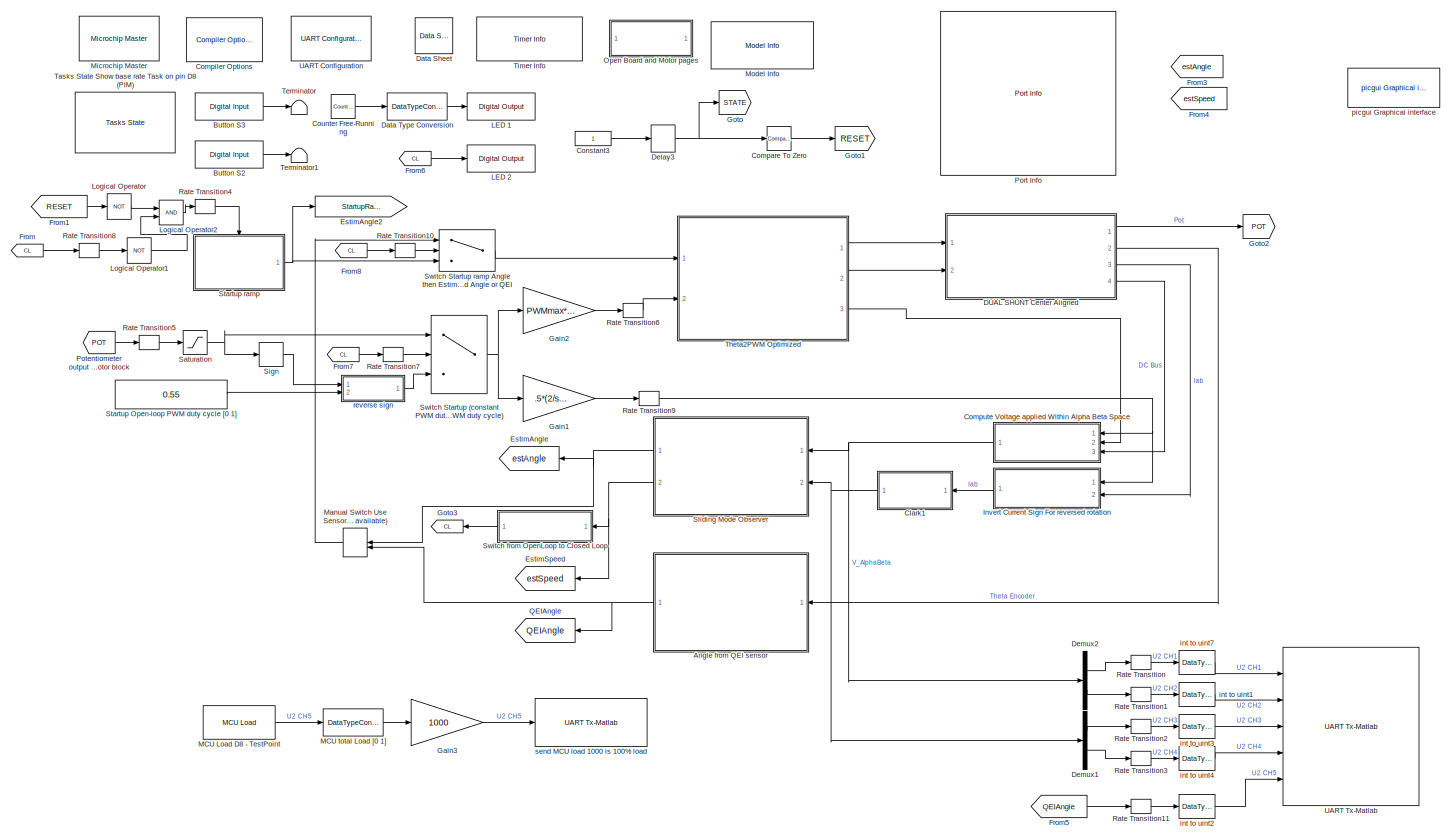
[diagram: root canvas - part 1/1, most of the canvas]
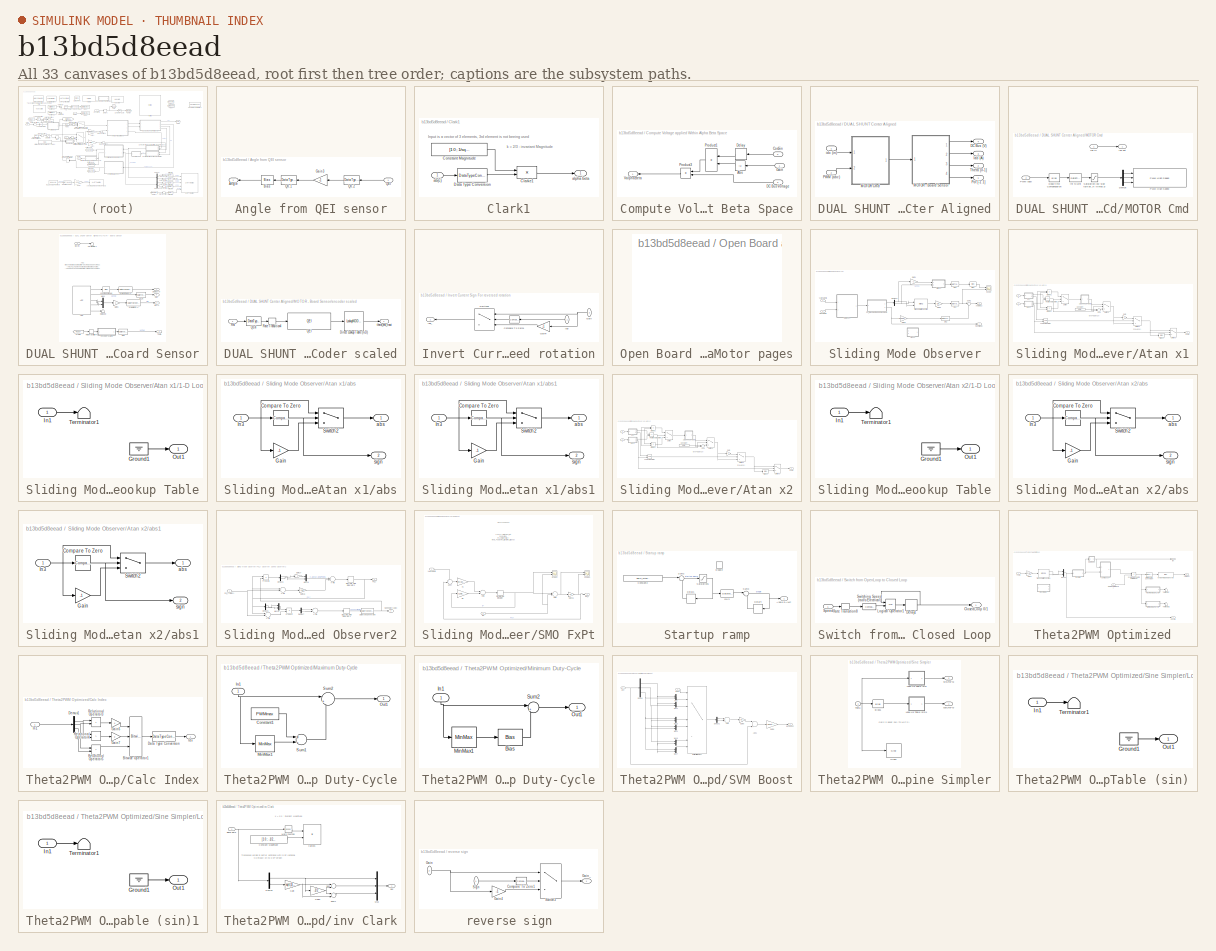
[diagram: thumbnail index - all 33 canvases of the model, root first then tree order]
MODEL slx_b13bd5d8eead
KIND model
CONFIG AbsTol = auto
CONFIG FixedStep = .00005
CONFIG MaxStep = auto
CONFIG MinStep = auto
CONFIG PreLoadFcn = UserParams;
CONFIG RelTol = 1e-3
CONFIG SampleTimeConstraint = Unconstrained
CONFIG Solver = FixedStepDiscrete
CONFIG SolverMode = Auto
CONFIG SolverName = FixedStepDiscrete
CONFIG StartTime = 0.0
CONFIG StopTime = 10.0
BLOCK [SubSystem] Angle from QEI sensor
  Ports = [1, 1]
  RequestExecContextInheritance = off
BLOCK [Outport] Angle from QEI sensor/Angle
  IconDisplay = Port number
BLOCK [Bias] Angle from QEI sensor/Bias
  Bias = 0.25
  SaturateOnIntegerOverflow = off
BLOCK [Gain] Angle from QEI sensor/Gain3
  Gain = -1
  ParamDataTypeStr = Inherit: Inherit via internal rule
  SaturateOnIntegerOverflow = off
BLOCK [DataTypeConversion] Angle from QEI sensor/Q0.1
  ConvertRealWorld = Stored Integer (SI)
  OutDataTypeStr = fixdt(0,16,16)
  RndMeth = Floor
  SaturateOnIntegerOverflow = off
BLOCK [DataTypeConversion] Angle from QEI sensor/Q0.2
  ConvertRealWorld = Stored Integer (SI)
  OutDataTypeStr = int16
  RndMeth = Floor
  SaturateOnIntegerOverflow = off
BLOCK [Inport] Angle from QEI sensor/QEI
  IconDisplay = Port number
BLOCK [Reference] Button S2  REF=MCHP_Blockset/Digital IO/Digital Input
  MCHP_MASTERLINK = CRL_MCLV_V2_33EP256MC506_SlidingModeObserver_DualShunt_R2015a/Microchip Master
  MCHP_PORT = {Digital In}{DIN}2:0:G7;
  ORDERING = None
  PACK = off
  PIN = 7
  PORT = Dynamic Options
  PORT_TXT = G   [ 6 : 9 ]
  Ports = [0, 1]
  SIMULTANEOUS = off
  SampleTime = .1
  SourceBlock = MCHP_Blockset/Digital IO/Digital Input
  SourceType = Input driver for Digital Input Pins
BLOCK [Reference] Button S3  REF=MCHP_Blockset/Digital IO/Digital Input
  MCHP_MASTERLINK = CRL_MCLV_V2_33EP256MC506_SlidingModeObserver_DualShunt_R2015a/Microchip Master
  MCHP_PORT = {Digital In}{DIN}2:0:G6;
  ORDERING = None
  PACK = off
  PIN = 6
  PORT = Dynamic Options
  PORT_TXT = G   [ 6 : 9 ]
  Ports = [0, 1]
  SIMULTANEOUS = off
  SampleTime = .1
  SourceBlock = MCHP_Blockset/Digital IO/Digital Input
  SourceType = Input driver for Digital Input Pins
BLOCK [SubSystem] Clark1
  Ports = [1, 1]
  RequestExecContextInheritance = off
BLOCK [Product] Clark1/Clarke1
  InputSameDT = off
  Multiplication = Matrix(*)
  OutDataTypeStr = fixdt(1,16)
  OutMax = [4.4]
  OutMin = [-4.4]
  Ports = [2, 1]
  RndMeth = Convergent
BLOCK [Constant] Clark1/Constant Magnitude
  OutDataTypeStr = fixdt(1,16)
  Value = [1 0 ; 1/sqrt(3) 2/sqrt(3) ];
BLOCK [DataTypeConversion] Clark1/Data Type Conversion
  OutDataTypeStr = fixdt(1,16)
  OutMax = 4.4
  OutMin = -4.4
  RndMeth = Floor
BLOCK [Inport] Clark1/ab(c)
  IconDisplay = Port number
BLOCK [Outport] Clark1/alpha beta
  IconDisplay = Port number
BLOCK [Reference] Compare To Zero  REF=simulink/Logic and Bit
Operations/Compare
To Zero
  OutDataTypeStr = boolean
  Ports = [1, 1]
  SourceBlock = simulink/Logic and Bit\nOperations/Compare\nTo Zero
  SourceType = Compare To Zero
  ZeroCross = on
  relop = ==
BLOCK [Reference] Compiler Options  REF=MCHP_Blockset/System Configuration/Compiler Options
  AssemblyListing = off
  COMP_LIST = Dynamic Options
  COMP_LIST_TXT = xc16 - v1.35
  DEBUG_INFO = off
  HEAP_SIZE = 0
  LATEST_CMPLR = on
  MCHP_MASTERLINK = CRL_MCLV_V2_33EP256MC506_SlidingModeObserver_DualShunt_R2015a/Microchip Master
  MCHP_MULTITHREAD_COMPILATION = on
  MCODE = is less than 32768 (faster)
  MCONST = in data memory
  MDATA = Use only memory below address 8192 (faster)
  MPLAB_LINKLIB = default
  MPLAB_LINKLIB1 = default
  MSCALAR = Use only memory below address 8192 (faster)
  OMF = elf
  OMIT_FRAME_POINTER = off
  OPTIMIZATION_LEVEL = 3
  PROCEDURAL_ABSTRACTION = off
  Ports = []
  Priority = 1
  ProduceHexOutput = on
  SourceBlock = MCHP_Blockset/System Configuration/Compiler Options
  UNROLL_LOOPS = on
  USE_64BIT_DOUBLE = off
  UseCustom_LinkerScript = off
BLOCK [SubSystem] Compute Voltage applied Within Alpha Beta Space
  Ports = [3, 1]
  RequestExecContextInheritance = off
BLOCK [Abs] Compute Voltage applied Within Alpha Beta Space/Abs
BLOCK [Inport] Compute Voltage applied Within Alpha Beta Space/CosSin
  IconDisplay = Port number
  Port = 2
BLOCK [Inport] Compute Voltage applied Within Alpha Beta Space/DC Bus Voltage
  IconDisplay = Port number
  Port = 3
BLOCK [Delay] Compute Voltage applied Within Alpha Beta Space/Delay
  InitialCondition = 0
  InputPortMap = u0
  Ports = [1, 1]
BLOCK [Inport] Compute Voltage applied Within Alpha Beta Space/Gain
  IconDisplay = Port number
BLOCK [Product] Compute Voltage applied Within Alpha Beta Space/Product1
  InputSameDT = off
  Ports = [2, 1]
  RndMeth = Floor
  SaturateOnIntegerOverflow = off
BLOCK [Product] Compute Voltage applied Within Alpha Beta Space/Product3
  InputSameDT = off
  OutDataTypeStr = fixdt(1,16)
  OutMax = [24]
  OutMin = [-24]
  Ports = [2, 1]
  RndMeth = Floor
  SaturateOnIntegerOverflow = off
BLOCK [Outport] Compute Voltage applied Within Alpha Beta Space/ValphaBeta
  IconDisplay = Port number
BLOCK [Constant] Constant3
  OutDataTypeStr = uint16
  SampleTime = .1
BLOCK [Reference] Counter Free-Running  REF=simulink/Sources/Counter
Free-Running
  NumBits = 1
  Ports = [0, 1]
  SourceBlock = simulink/Sources/Counter\nFree-Running
  SourceType = Counter Free-Running
  tsamp = .1
BLOCK [SubSystem] DUAL SHUNT Center Aligned
  Ports = [2, 4]
  RequestExecContextInheritance = off
  VariantControl = (default)
BLOCK [Outport] DUAL SHUNT Center Aligned/DC Bus (V)
  IconDisplay = Port number
  Port = 4
BLOCK [Outport] DUAL SHUNT Center Aligned/Iab (A)
  IconDisplay = Port number
  Port = 3
BLOCK [SubSystem] DUAL SHUNT Center Aligned/MOTOR - Board Sensor
  Ports = [1, 4]
  RequestExecContextInheritance = off
BLOCK [Reference] DUAL SHUNT Center Aligned/MOTOR - Board Sensor/ADC  REF=MCHP_Blockset/Analog IO/ADC
  ADC_DMA_CHANNEL = Use Interrupt instead of DMA
  ADC_R = < 5    kOhm
  ADC_REF = 1
  ADC_TIMING = [8.9142857142857144e-06]
  ADxCSS = [10 13]
  FORM = sddd dddd dddd 0000  ==> Signed fractional
  Info = Total Time for Sample & Conversion : 8.9143e-06s including 3.4286e-07s (x 2) sample time.
  MCHP_MASTERLINK = CRL_MCLV_V2_33EP256MC506_SlidingModeObserver_DualShunt_R2015a/Microchip Master
  MCHP_PORT = {Analog Input 0}{AN0}15:2:A0;{Analog Input 1}{AN1}15:2:A1;{Analog Input 2}{AN2}15:2:B0;{Analog Input 10}{AN10}15:2:A12;{Analog Input 13}{AN13}15:2:E13;
  MUXA_CH0N = off
  MUXA_CH123 = Dynamic Options
  MUXA_CH123_TXT = AN0 : AN1 : AN2
  MUXB_CH0 = AN1
  MUXB_CH0N = on
  MUXB_CH123 = Dynamic Options
  MUXB_CH123_TXT = AN0 : AN1 : AN2
  Mode = 10 bits (allows exact simultaneous sampling)
  Ports = [0, 5]
  Priority = 5
  SIMULTANEOUS = Simultaneously on all Channels
  SSRC_SSRCG = Dynamic Options
  SSRC_SSRCG_TXT = 6
  SampleTime = 5e-05
  SequenceRepeat = 1
  SequenceTiming = are done as fast as possible ; triggered by user define source
  SourceBlock = MCHP_Blockset/Analog IO/ADC
  Trig_TimeStep = with each update of the ADC block output
  Update_BlockOutput = After each trig and conversion sequence
  nSAMPLECHANNELS = CH0 : CH1 : CH2 : CH3
  nSAMPLECHANNELS_12bits = CH0 only
BLOCK [Outport] DUAL SHUNT Center Aligned/MOTOR - Board Sensor/DC Bus (V)
  IconDisplay = Port number
BLOCK [From] DUAL SHUNT Center Aligned/MOTOR - Board Sensor/From5
  GotoTag = RESET
  TagVisibility = global
BLOCK [Gain] DUAL SHUNT Center Aligned/MOTOR - Board Sensor/Gain1
  Gain = -1
  ParamDataTypeStr = Inherit: Inherit via internal rule
BLOCK [Outport] DUAL SHUNT Center Aligned/MOTOR - Board Sensor/Iab (A)
  IconDisplay = Port number
  Port = 2
BLOCK [Mux] DUAL SHUNT Center Aligned/MOTOR - Board Sensor/Mux1
  DisplayOption = bar
  Inputs = 2
  Ports = [2, 1]
BLOCK [Terminator] DUAL SHUNT Center Aligned/MOTOR - Board Sensor/Not used
BLOCK [Outport] DUAL SHUNT Center Aligned/MOTOR - Board Sensor/Pot
  IconDisplay = Port number
  Port = 4
BLOCK [DataTypeConversion] DUAL SHUNT Center Aligned/MOTOR - Board Sensor/Q0.2
  ConvertRealWorld = Stored Integer (SI)
  OutDataTypeStr = uint16
  RndMeth = Floor
  SaturateOnIntegerOverflow = off
BLOCK [DataTypeConversion] DUAL SHUNT Center Aligned/MOTOR - Board Sensor/Q1.15
  ConvertRealWorld = Stored Integer (SI)
  OutDataTypeStr = fixdt(1,16,15)
  RndMeth = Floor
  SaturateOnIntegerOverflow = off
BLOCK [RateTransition] DUAL SHUNT Center Aligned/MOTOR - Board Sensor/Rate Transition4
  X0 = 1
BLOCK [DataTypeConversion] DUAL SHUNT Center Aligned/MOTOR - Board Sensor/Scale DC BUS  (V)
  ConvertRealWorld = Stored Integer (SI)
  OutDataTypeStr = fixdt(0,16, (3.3*16)/65535 ,0)
  RndMeth = Floor
  SaturateOnIntegerOverflow = off
BLOCK [DataTypeConversion] DUAL SHUNT Center Aligned/MOTOR - Board Sensor/Scale Ia Ib to (A)
  ConvertRealWorld = Stored Integer (SI)
  OutDataTypeStr = fixdt(1,16, 1.65/32768 / (.005 * 75),0)
  RndMeth = Floor
  SaturateOnIntegerOverflow = off
BLOCK [Terminator] DUAL SHUNT Center Aligned/MOTOR - Board Sensor/Terminator1
BLOCK [Outport] DUAL SHUNT Center Aligned/MOTOR - Board Sensor/Theta
  IconDisplay = Port number
  Port = 3
BLOCK [Bias] DUAL SHUNT Center Aligned/MOTOR - Board Sensor/conv to unsigned
  Bias = 32768
  SaturateOnIntegerOverflow = off
BLOCK [SubSystem] DUAL SHUNT Center Aligned/MOTOR - Board Sensor/encoder scaled
  Ports = [1, 1]
  RequestExecContextInheritance = off
BLOCK [LookupNDDirect] DUAL SHUNT Center Aligned/MOTOR - Board Sensor/encoder scaled/Direct Lookup Table (n-D)
  LockScale = on
  NumberOfTableDimensions = 1
  Ports = [1, 1]
  Table = [0:199]*inv(200)
  TableDataTypeStr = fixdt(0,16,16)
BLOCK [DataTypeConversion] DUAL SHUNT Center Aligned/MOTOR - Board Sensor/encoder scaled/Q0.4
  RndMeth = Floor
  SaturateOnIntegerOverflow = off
BLOCK [Reference] DUAL SHUNT Center Aligned/MOTOR - Board Sensor/encoder scaled/QEI  REF=MCHP_Blockset/QEI/QEI
  FILTER_CutOffFreq = 100e3
  FILTREN = on
  HOMPOL = on
  IDXPOL = off
  IMV = QEA = 1 and QEB = 0
  IMV_x2 = QEA = 1
  INDXxCNT_Output = is not an output
  INTxHLD_Output = is not an output
  MCHP_MASTERLINK = CRL_MCLV_V2_33EP256MC506_SlidingModeObserver_DualShunt_R2015a/Microchip Master
  MCHP_PORT = {QEI1 A}{QEA1}5:0:P54;{QEI1 B}{QEB1}5:0:P96;
  MaxPeriod = 0.1
  PCIIRQ = off
  PIMOD_mode = position is cyclique between user defined boundaries
  PIMOD_modeB = Never reset position
  PIMOD_reset = on next INDEX event
  PIN_CCMP = Dynamic Options
  PIN_CCMP_TXT = A4 / P20 / Pin[33]
  PIN_HOME = Dynamic Options
  PIN_HOME_TXT = B9 / P41 / Pin[49]
  PIN_INDEX = Dynamic Options
  PIN_INDEX_TXT = B15 / P47 / Pin[3]
  PIN_QEA = Dynamic Options
  PIN_QEA_TXT = C6 / P54 / Pin[50]
  PIN_QEB = Dynamic Options
  PIN_QEB_TXT = F0 / P96 / Pin[58]
  POSxCNT_Output = is a 16 bits unsigned block output
  Ports = [1, 1]
  QEAPOL = off
  QEBPOL = off
  QEI_IntPri = 5
  QEI_MODE = Quadrature Encoder
  QEI_PulseCountDir = Down
  QEI_REF = 1
  QEI_x2mode = off
  QEIxIC = 0
  QEIxLEC_GEC = [0 199]
  QFDIV_popup = Dynamic Options
  QFDIV_popup_TXT = 364.58 kHz
  RESET_Input = on
  SWPAB = on
  SampleTime = -1
  SourceBlock = MCHP_Blockset/QEI/QEI
  SourceType = Output Driver for Quadrature Encoder Interface (QEI) peripheral
  UserDataPersistent = on
  VELxCNT_Output = is not an output
BLOCK [RateTransition] DUAL SHUNT Center Aligned/MOTOR - Board Sensor/encoder scaled/Rate Transition4
  X0 = 1
BLOCK [Inport] DUAL SHUNT Center Aligned/MOTOR - Board Sensor/encoder scaled/Rst
  IconDisplay = Port number
BLOCK [Outport] DUAL SHUNT Center Aligned/MOTOR - Board Sensor/encoder scaled/theta_enc_fract
  IconDisplay = Port number
BLOCK [Inport] DUAL SHUNT Center Aligned/MOTOR - Board Sensor/idx (in)
  IconDisplay = Port number
BLOCK [SubSystem] DUAL SHUNT Center Aligned/MOTOR Cmd
  Ports = [2, 1]
  RequestExecContextInheritance = off
BLOCK [Bias] DUAL SHUNT Center Aligned/MOTOR Cmd/Dead time Compensation
  Bias = round( (2e-6/5e-5) *PWMmax )
  SaturateOnIntegerOverflow = off
BLOCK [Demux] DUAL SHUNT Center Aligned/MOTOR Cmd/Demux
  DisplayOption = bar
  Outputs = 3
  Ports = [1, 3]
BLOCK [Inport] DUAL SHUNT Center Aligned/MOTOR Cmd/PWM (abc)
  IconDisplay = Port number
  Port = 2
BLOCK [Reference] DUAL SHUNT Center Aligned/MOTOR Cmd/PWM High Speed  REF=MCHP_Blockset/PWM IO/PWM High Speed
  ADC_VARTRIG = {PWM Primary Special Event Trigger;6}
  ChkCurBlkOut = [1  0  0  0  0  0  0]
  ChkCurBlkOutTime = [1  0  1  0  0  0  0]
  InitDC = [4   4   4  50  50  50  50 ; 0.001        0.001        0.001           50           50           50           50]
  InitP2 = [5e-05       5e-05       5e-05       0.001       0.001       0.001       0.001 ; 0.001       0.001       0.001       0.001       0.001       0.001       0.001]
  InitPh = [0           0           0       0.001       0.001       0.001       0.001 ; 0           0           0       0.001       0.001       0.001       0.001]
  MCHP_MASTERLINK = CRL_MCLV_V2_33EP256MC506_SlidingModeObserver_DualShunt_R2015a/Microchip Master
  MCHP_PORT = {PWM1 Fault}{FLT32}4:0:B4;{PWM2 Fault}{FLT32}4:0:B4;{PWM3 Fault}{FLT32}4:0:B4;{PWM1H}{PWM1H}4:4:B14;{PWM1L}{PWM1L}4:4:B15;{PWM2H}{PWM2H}4:4:B12;{PWM2L}{PWM2L}4:4:B13;{PWM3H}{PWM3H}4:4:B10;{PWM3L}{PWM3L}4:4:B11;
  MCHP_VERSION = v3.38
  ORDERING = None
  Ports = [3]
  S_DWORK_Size = []
  S_DWORK_Type = []
  S_INPUT = [5  5  5]
  S_INPUT_Size = [1  1  1]
  S_OUTPUT = []
  S_OUTPUT_Size = []
  SampleTime = -1
  SourceBlock = MCHP_Blockset/PWM IO/PWM High Speed
  UserDataPersistent = on
  chk1 = [1  1  1  0]
  chkDC = [1  1  1  1  1  1  1 ; 0  0  0  1  1  1  1]
  chkFltBlkOut = [0  0  0  0  0  0  0]
  chkHL1 = [1  1  1  1  1  1  1 ; 1  1  1  1  1  1  1]
  chkP2 = [0  0  0  1  1  1  1 ; 1  0  0  1  1  1  1]
  chkPh = [0  0  0  1  1  1  1 ; 0  0  0  1  1  1  1]
  chkSEvTrigx = [0  0  0  1  1  1  1]
  edAltDTRx = [2e-06       2e-06       2e-06       1e-05       1e-05       1e-05       1e-05]
  edDTRx = [0           0           0       1e-05       1e-05       1e-05       1e-05]
  edLEB = { '100e-9','50e-9','150e-9','50e-9','50e-9','50e-9','50e-9'}
  edSEvTrigx = {'0','-1','-1','-1','-1','-1','-1'}
  maxP1 = [5e-05       5e-05       5e-05       0.001       0.001       0.001       0.001 ; 0.001       0.001       1e-06       0.001       0.001       0.001       0.001]
  pop1 = [1]
  popBLANKSEL = [1  1  1  1  1  1  1]
  popBPHHBPHL = [1  1  1  1  1  1  1]
  popBPLHBPLL = [1  1  1  1  1  1  1]
  popCurActiveH = [1  1  1  1  1  1  1]
  popCurEnabled = [1  1  1  1  1  1  1]
  popCurForceH = [2  1  2  1  1  1  1]
  popCurForceL = [2  1  2  1  1  1  1]
  popCurPin = [33  31  32  16  16  16  16]
  popDT = [1  1  1  3  3  3  3]
  popFLTLEBEN_CLLEBEN = [1  1  1  1  1  1  1]
  popFlt = [2  2  2  1  1  1  1]
  popFltActivH = [2  2  2  1  1  1  1]
  popFltForceH = [2  2  2  2  2  2  2]
  popFltForceL = [1  1  1  1  1  1  1]
  popFltPin = [20  20  20   4   4   4   4]
  popFltPinRp = [1  1  1  1  1  1  1]
  popIndepFaultMode = [1  1  1  1  1  1  1]
  popPHR_PHF = [2  1  1  1  1  1  1]
  popPLR_PLF = [3  1  1  1  1  1  1]
BLOCK [Saturate] DUAL SHUNT Center Aligned/MOTOR Cmd/Saturation low side turn on errate workaround + errata for Phase shift (times 2)
  InputPortMap = u0
  LowerLimit = round( (2e-6/5e-5) *PWMmax )* 2
  Ports = [1, 1]
  UpperLimit = PWMmax
BLOCK [Inport] DUAL SHUNT Center Aligned/MOTOR Cmd/idx in
  IconDisplay = Port number
BLOCK [Outport] DUAL SHUNT Center Aligned/MOTOR Cmd/idx out
  IconDisplay = Port number
BLOCK [DataTypeConversion] DUAL SHUNT Center Aligned/MOTOR Cmd/int to uint
  ConvertRealWorld = Stored Integer (SI)
  OutDataTypeStr = uint16
  RndMeth = Floor
  SaturateOnIntegerOverflow = off
BLOCK [Inport] DUAL SHUNT Center Aligned/PWM (abc)
  IconDisplay = Port number
  Port = 2
BLOCK [Outport] DUAL SHUNT Center Aligned/Pot [-1 1]
  IconDisplay = Port number
BLOCK [Outport] DUAL SHUNT Center Aligned/Theta [0-1]
  IconDisplay = Port number
  Port = 2
BLOCK [Inport] DUAL SHUNT Center Aligned/idx (in)
  IconDisplay = Port number
BLOCK [Reference] Data Sheet  REF=MCHP_Blockset/System Info/Data Sheet
  AttributesFormatString = %<cpy_MCHP_Id>
  DOC_FileLastCheckTime = [2016              1             28             13             25         44.133]
  DOC_FilePath = <userpath>\AppData\Local\Temp\70000657H.pdf
  DOC_MCHP_Id = 33EP256MC506_datasheet
  DOC_Type = datasheet
  MCHP_MASTERLINK = CRL_MCLV_V2_33EP256MC506_SlidingModeObserver_DualShunt_R2015a/Microchip Master
  Ports = []
  SourceBlock = MCHP_Blockset/System Info/Data Sheet
  cpy_MCHP_Id = 33EP256MC506
BLOCK [DataTypeConversion] Data Type Conversion
  OutDataTypeStr = boolean
  RndMeth = Floor
  SaturateOnIntegerOverflow = off
BLOCK [Delay] Delay3
  DelayLength = 1
  InitialCondition = 0
  InputPortMap = u0
  Ports = [1, 1]
BLOCK [Demux] Demux1
  DisplayOption = bar
  Outputs = 2
  Ports = [1, 2]
BLOCK [Demux] Demux2
  DisplayOption = bar
  Outputs = 2
  Ports = [1, 2]
BLOCK [Goto] EstimAngle
  GotoTag = estAngle
BLOCK [Goto] EstimAngle2
  GotoTag = StartupRamp
BLOCK [Goto] EstimSpeed
  GotoTag = estSpeed
BLOCK [From] From
  GotoTag = CL
  TagVisibility = global
BLOCK [From] From1
  GotoTag = RESET
  TagVisibility = global
BLOCK [From] From3
  GotoTag = estAngle
BLOCK [From] From4
  GotoTag = estSpeed
BLOCK [From] From5
  GotoTag = QEIAngle
BLOCK [From] From6
  GotoTag = CL
  TagVisibility = global
BLOCK [From] From7
  GotoTag = CL
  TagVisibility = global
BLOCK [From] From8
  GotoTag = CL
  TagVisibility = global
BLOCK [Gain] Gain1
  Gain = .5*(2/sqrt(3))
  OutDataTypeStr = fixdt(1,16,15)
  ParamDataTypeStr = Inherit: Inherit via internal rule
  SaturateOnIntegerOverflow = off
BLOCK [Gain] Gain2
  Gain = PWMmax*0.5
  OutDataTypeStr = fixdt(1,16)
  OutMax = PWMmax*0.5
  OutMin = -PWMmax*0.5
  ParamDataTypeStr = Inherit: Inherit via internal rule
  SaturateOnIntegerOverflow = off
BLOCK [Gain] Gain3
  Commented = on
  Gain = 1000
  OutDataTypeStr = uint16
  ParamDataTypeStr = Inherit: Inherit via internal rule
  SaturateOnIntegerOverflow = off
BLOCK [Goto] Goto
  GotoTag = STATE
  TagVisibility = global
BLOCK [Goto] Goto1
  GotoTag = RESET
  TagVisibility = global
BLOCK [Goto] Goto2
  GotoTag = POT
  TagVisibility = global
BLOCK [Goto] Goto3
  GotoTag = CL
  TagVisibility = global
BLOCK [SubSystem] Invert Current Sign For reversed rotation
  Ports = [2, 1]
  RequestExecContextInheritance = off
BLOCK [Reference] Invert Current Sign For reversed rotation/Compare To Zero1  REF=simulink/Logic and Bit
Operations/Compare
To Zero
  OutDataTypeStr = boolean
  Ports = [1, 1]
  SourceBlock = simulink/Logic and Bit\nOperations/Compare\nTo Zero
  SourceType = Compare To Zero
  ZeroCross = on
  relop = >=
BLOCK [Inport] Invert Current Sign For reversed rotation/Gain
  IconDisplay = Port number
  Port = 2
BLOCK [Gain] Invert Current Sign For reversed rotation/Gain4
  Gain = -1
  ParamDataTypeStr = Inherit: Inherit via internal rule
BLOCK [Inport] Invert Current Sign For reversed rotation/Iab
  IconDisplay = Port number
BLOCK [Outport] Invert Current Sign For reversed rotation/Iab_ 
  IconDisplay = Port number
BLOCK [Switch] Invert Current Sign For reversed rotation/Switch3
  Criteria = u2 ~= 0
  InputSameDT = off
  SaturateOnIntegerOverflow = off
  Threshold = 250
BLOCK [Reference] LED 1  REF=MCHP_Blockset/Digital IO/Digital Output
  MCHP_MASTERLINK = CRL_MCLV_V2_33EP256MC506_SlidingModeObserver_DualShunt_R2015a/Microchip Master
  ORDERING = None
  PACK = off
  PIN = 6
  PORT = Dynamic Options
  PORT_TXT = D   [ 5  6  8 ]
  Ports = [1]
  READPREVIOUS = off
  SIMULTANEOUS = off
  SampleTime = -1
  SourceBlock = MCHP_Blockset/Digital IO/Digital Output
BLOCK [Reference] LED 2  REF=MCHP_Blockset/Digital IO/Digital Output
  MCHP_MASTERLINK = CRL_MCLV_V2_33EP256MC506_SlidingModeObserver_DualShunt_R2015a/Microchip Master
  ORDERING = None
  PACK = off
  PIN = 5
  PORT = Dynamic Options
  PORT_TXT = D   [ 5  6  8 ]
  Ports = [1]
  READPREVIOUS = off
  SIMULTANEOUS = off
  SampleTime = -1
  SourceBlock = MCHP_Blockset/Digital IO/Digital Output
BLOCK [Logic] Logical Operator
  AllPortsSameDT = off
  Operator = NOT
  OutDataTypeStr = boolean
  Ports = [1, 1]
BLOCK [Logic] Logical Operator1
  AllPortsSameDT = off
  Operator = NOT
  OutDataTypeStr = boolean
  Ports = [1, 1]
BLOCK [Logic] Logical Operator2
  AllPortsSameDT = off
  OutDataTypeStr = boolean
  Ports = [2, 1]
BLOCK [Reference] MCU Load D8 - TestPoint  REF=MCHP_Blockset/Profiling/MCU Load
  Commented = on
  Info = Timer 1:  Resol: 114.2857143(ns)  -  Max: 7.48983(ms)
  MCHP_COMPILED_INFO = CompiledSampleTime= [0.0070000000000000001   0 ];CompiledInportDataTypes=[ ];CompiledInportDataWidth=[];
  MCHP_MASTERLINK = CRL_MCLV_V2_33EP256MC506_SlidingModeObserver_DualShunt_R2015a/Microchip Master
  MCHP_TIMER_REQUEST = {MCU_Load}{MCU_Load}21:5:0:0:[]:524288;
  MCHP_TIMER_RESULT = [1 65535 ]
  MCULoadMeasure = on
  MCULoadPin = Dynamic Options
  MCULoadPin_TXT = None
  Ports = [0, 1]
  SampleTime = .007
  SourceBlock = MCHP_Blockset/Profiling/MCU Load
  SourceType = MCU Load (Profile execution time)
  TIMER_Resolution = Dynamic Options
  TIMER_Resolution_TXT = Resol: 0.1143(us)  -  Max: 7.49(ms)
BLOCK [DataTypeConversion] MCU total Load [0 1]
  Commented = on
  ConvertRealWorld = Stored Integer (SI)
  OutDataTypeStr = fixdt(0,16,114.28e-9/.007,0)
  RndMeth = Floor
  SaturateOnIntegerOverflow = off
BLOCK [ManualSwitch] Manual Switch Use Sensorless Estimation or QEI (if available)
BLOCK [Reference] Microchip Master  REF=MCHP_Blockset/System Configuration/Microchip Master
  ACLKCON = Optimized for PWM resolution & ADC conversion speed
  ACTIV_PLL = on
  ACTIV_PLL_spd = on
  AIVTDIS = Disable Alternate Vector Table
  ALTADREF = Not used
  ALTCMPI = Not used
  ALTCVREF = Not used
  ALTI2C = I2C mapped to SDA1/SCL1 pins
  ALTI2C1 = I2C1 mapped to SDA1/SCL1 pins
  ALTI2C2 = I2C2 mapped to SDA2/SCL2 pins
  ALTPMP = Not used
  ALTQIO = QEA1; QEB1; INDX1 are selected as inputs to QEI1
  ALTRB6 = Not used
  ALTSS1 = SS1A is selected as the I/O pin for SPI1
  ALTVREF = Not used
  APL = Aux Flash Code protect is disabled
  APLK = Aux Flash Write Protection or Code Protection is Enabled
  ATMOD8 = Not used
  AWRP = Auxiliary program memory is not write-protected
  BACKBUG = Not used
  BKBUG = Not used
  BODENV = 2.7V
  BOOTISA = Boot code and Exception code is MIPS32
  BOREN = Disable
  BOREN0 = Enabled
  BOREN1 = Not used
  BORV = Not used
  BSEN = No Boot Segment
  BSLIM = Not used
  BSS = No Boot program Flash segment
  BSS2 = No Boot Segment
  BTMODE = Not used
  BTSWP = BOOTSWP instruction is disabled
  BUSYFLAG = Dynamic Options
  BUSYFLAG_TXT = D8 / Pin[42]
  BWP = Not used
  BWRP = Boot Segment may be written
  CMPPOL0 = Hysteresis is applied to falling edge
  CMPPOL1 = Hysteresis is applied to falling edge
  COE = Not used
  CP = Protection Disabled
  CSEQ = Not used
  CSS = No Protection (other than CWRP)
  CTXT1 = Not Assigned
  CTXT2 = Not Assigned
  CWRP = Configuration Segment may be written
  DBCC = No Cross Connection between DAC outputs
  DBGPER = Allow CPU access to all permission regions
  DEBUG = Debugger is disabled
  DFMCY = Not used
  DISUVREG = Not used
  DMTCNT = 2^31 (2147483648)
  DMTEN = Dead Man Timer is Disabled and can be enabled by software
  DMTINTV = Window/Interval value is 127/128 counter value
  DMTIVT = Not used
  DSBOREN = Enable ZPBOR during Deep Sleep Mode
  DSLPBOR = Not used
  DSSWEN = Not used
  DSWDTEN = Enable DSWDT during Deep Sleep Mode
  DSWDTOSC = Select LPRC as DSWDT Reference clock
  DSWDTPS = 1:2^36
  EBS = No Boot EEPROM
  EJTAGBEN = Normal EJTAG functionality
  ESS = No Segment Data EEPROM
  EXTDDRSIZE = Not used
  FCANIO = Not used
  FCKSM = Both Clock switching and Fail-safe Clock Monitor are enabled
  FCKSMEN = Sw Disabled; Mon Disabled
  FDMTEN = Deadman Timer is disabled
  FECCCON = ECC and Dynamic ECC are disabled (ECCCON bits are writable)
  FETHIO = Default Ethernet I/O
  FMIIEN = MII Enabled
  FNOSC = Primary Oscillator (XT; HS; EC)
  FOS = Primary Oscillator
  FOSFPR = HS3 w/PLL 16x
  FPBDIV = Not used
  FPLLICLK = FRC is input to the System PLL
  FPLLIDIV = 8x Divider
  FPLLMUL = Not used
  FPLLMULT = PLL Multiply by 128
  FPLLODIV = 32x Divider
  FPLLRNG = 34-68 MHz Input
  FPR = ECIO w/ PLL 16x
  FPWRT = 128ms
  FRANGE = High Range
  FSLEEP = Flash is powered down when the device is in Sleep mode
  FSOSCEN = Enable SOSC
  FSRSSEL = Not used
  FUSBIDIO = Controlled by the USB Module
  FVBUSONIO = Not used
  FWDTEN = Disable
  FWDTWINSZ = Window size is 25%
  FWPSA = 1:512
  FWPSA0 = 1:128
  FWPSB = 1:16
  GCP = General Segment Code protect is Disabled
  GSS = General Segment Code protect is Disabled
  GSS0 = Not used
  GSSK = General Segment Write Protection or Code Protection is Enabled
  GWRP = General Segment may be written
  HPOL = PWM module high side output pins have active-high output polarity
  HYST0 = 45 mV Hysteresis
  HYST1 = 45 mV Hysteresis
  I2C1SEL = Not used
  I2C2SEL = Not used
  ICESEL = Communicate on PGEC1/PGED1
  ICS = Communicate on PGEC2 and PGED2
  IESO = Start up with FRC; then switch
  IOL1WAY = Allow only one reconfiguration
  JTAGEN = Disable
  LPCFG = Not used
  LPOL = PWM module low side output pins have active-high output polarity
  LPRCSEL = Not used
  LVRCFG = Not used
  MCHPVAR = MCHP.fcy.MIPS=70000000;MCHP.fcy.SYSCLK=70000000;MCHP.fcy.ADC=70000000;MCHP.fcy.Comparator=70000000;MCHP.fcy.I2C=70000000;MCHP.fcy.SPI=70000000;MCHP.fcy.UART=70000000;MCHP.fcy.Timers=70000000;MCHP.fcy.OC=70000000;MCHP.fcy.IC=70000000;MCHP.fcy.Ports=70000000;MCHP.fcy.QEI=70000000;MCHP.PowerSave=0;MCHP.TimeStepFactor=-20000;MCHP.TimeStep_Timer=-1;MCHP.NTIMERS=5;MCHP.id.name='33EP256MC506';MCHP.id.N=r...<+12117ch>
  MCHP_CRC = 5766771
  MCHP_PLLRegisters = [5    243  16385     -1]
  MCHP_PORT = {Busy Flag}{Busy}0:1:D8;
  MCHP_TIMER_RESULT = [ ]
  MCLRE = Enabled
  MIPS = 70 * 1e6
  MIPS_DESIRED = 70e6
  MIPS_DESIRED_spd = 70e6
  ON = Not used
  OSCILLATOR_SELECT = Crystal / Ceramic resonator
  OSCILLATOR_SELECT_spd = Crystal / Ceramic resonator
  OSCIOFCN = Not used
  OSCIOFNC = general purpose digital I/O pin
  PGL1WAY = Allow only one reconfiguration
  PICREF = 33EP256MC506
  PLL96MHZ = Not used
  PLLDIV = Not used
  PLLKEN = Clock switch to PLL source will wait until the PLL lock signal is valid.
  PLLSS = Not used
  PLL_96MHZ = Not used
  PMDL1WAY = Allow only one reconfiguration
  POSCBOOST = Boost the kick start of the oscillator
  POSCFREQ = Not used
  POSCGAIN = 2x gain setting
  POSCMD = XT Crystal Oscillator Mode
  POSCMOD = Primary Oscillator Disabled
  POWERSAVE = off
  PWMLOCK = PWM registers may be written without key sequence
  PWMPIN = PWM module pins controlled by PORT register at device Reset
  PWP = Not used
  PWRTEN = Not used
  Ports = []
  Priority = 1
  QUARTZ = 8e6
  QUARTZ_spd = 8e6
  RBS = No Boot RAM
  RES = Not used
  RES1 = Not used
  RES2 = Not used
  RESERVED1 = Not used
  RETCFG = Not used
  RSS = No Secure RAM
  RSTPRI = Device will obtain reset instruction from Primary flash
  RTCBAT = Not used
  RTCOSC = Not used
  SEQNUM = Not used
  SMCLR = MCLR pin generates a normal system Reset
  SOSCBOOST = Boost the kick start of the oscillator
  SOSCGAIN = 2x gain setting
  SOSCSEL = Not used
  SOSCSRC = Not used
  SSS = No Secure Segment
  SWRP = Secure segment may be written
  SourceBlock = MCHP_Blockset/System Configuration/Microchip Master
  TEMP = Not used
  TIMESTEP_REF = ADC
  TRCEN = Trace features in the CPU are enabled
  TSEQ = Not used
  UPLLEN = USB PLL Disabled
  UPLLFSEL = USB PLL input is 24 MHz
  UPLLIDIV = Not used
  USERID = Not used
  VBTBOR = Not used
  WDT = Disable
  WDTCLK = Not used
  WDTCMX = Not used
  WDTEN = Disable
  WDTPOST = 1:32768
  WDTPRE = 1:128
  WDTPS = 1:32768
  WDTSPGM = WDT stops during Flash programming
  WDTWIN = WDT Window is 25% of WDT period
  WINDIS = Watchdog Timer in Non-Window mode
  WPCFG = Not used
  WPDIS = Not used
  WPEND = Not used
  WPFP = Not used
  WUTSEL = Not used
  WWDTEN = Non-Window mode
  nSEQNUM = Not used
BLOCK [Reference] Model Info  REF=simulink/Model-Wide
Utilities/Model Info
  DisplayStringWithTags = Short hust motor with:\nM1 - Black\nM2 - Red\nM3 - White
  Frame = on
  HorizontalTextAlignment = Left
  LeftAlignmentValue = 0.02
  MaskDisplayString = Short hust motor with:\nM1 - Black\nM2 - Red\nM3 - White
  Ports = []
  SourceBlock = simulink/Model-Wide\nUtilities/Model Info
  SourceBlockDiagram = CRL_MCLV_V2_33EP256MC506_SlidingModeObserver_DualShunt_R2015a
  SourceType = CMBlock
  TagMaxNumber = 20
BLOCK [SubSystem] Open Board and Motor pages
  OpenFcn = web('www.microchip.com/DevelopmentTools/ProductDetails.aspx?PartNO=DM330021-2','-browser');\npause(1);\nweb('http://www.microchipdirect.com/productsearch.aspx?keywords=AC300020','-browser');\npause(1);\nweb('www.microchipdirect.com/ProductSearch.aspx?keywords=AC300022','-browser');
  Ports = []
  RequestExecContextInheritance = off
BLOCK [Reference] Port Info  REF=MCHP_Blockset/System Info/Port Info
  MCHP_MASTERLINK = CRL_MCLV_V2_33EP256MC506_SlidingModeObserver_DualShunt_R2015a/Microchip Master
  Ports = []
  SourceBlock = MCHP_Blockset/System Info/Port Info
BLOCK [From] Potentiometer output From the Motor block
  GotoTag = POT
  TagVisibility = global
BLOCK [Goto] QEIAngle
  GotoTag = QEIAngle
BLOCK [RateTransition] Rate Transition
BLOCK [RateTransition] Rate Transition1
BLOCK [RateTransition] Rate Transition10
BLOCK [RateTransition] Rate Transition11
BLOCK [RateTransition] Rate Transition2
BLOCK [RateTransition] Rate Transition3
BLOCK [RateTransition] Rate Transition4
BLOCK [RateTransition] Rate Transition5
  OutPortSampleTime = .1
BLOCK [RateTransition] Rate Transition6
BLOCK [RateTransition] Rate Transition7
BLOCK [RateTransition] Rate Transition8
BLOCK [RateTransition] Rate Transition9
BLOCK [Saturate] Saturation
  InputPortMap = u0
  LowerLimit = 0
  Ports = [1, 1]
  UpperLimit = 1
BLOCK [Signum] Sign
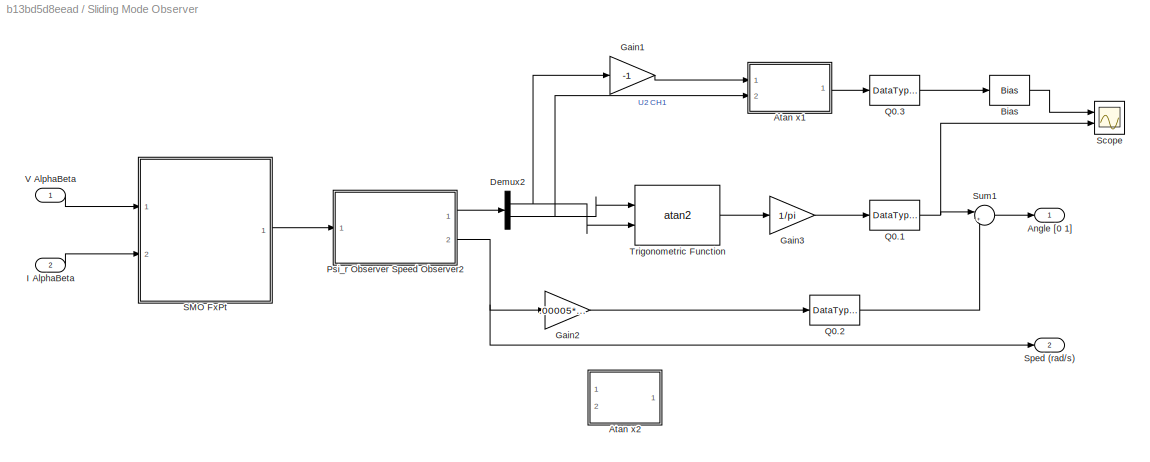
BLOCK [SubSystem] Sliding Mode Observer
  Ports = [2, 2]
  RequestExecContextInheritance = off
BLOCK [Outport] Sliding Mode Observer/Angle [0 1]
  IconDisplay = Port number
BLOCK [SubSystem] Sliding Mode Observer/Atan x1
  AncestorBlock = Lib_MCHP_BLKDEMO_Motor/Atan x2
  Ports = [2, 1]
  RequestExecContextInheritance = off
BLOCK [SubSystem] Sliding Mode Observer/Atan x1/1-D Lookup Table
  Description = Replaced Block
  Ports = [1, 1]
  RequestExecContextInheritance = off
BLOCK [Ground] Sliding Mode Observer/Atan x1/1-D Lookup Table/Ground1
BLOCK [Inport] Sliding Mode Observer/Atan x1/1-D Lookup Table/In1
  IconDisplay = Port number
BLOCK [Outport] Sliding Mode Observer/Atan x1/1-D Lookup Table/Out1
  IconDisplay = Port number
BLOCK [Terminator] Sliding Mode Observer/Atan x1/1-D Lookup Table/Terminator1
BLOCK [Bias] Sliding Mode Observer/Atan x1/Bias1
  Bias = 1
  SaturateOnIntegerOverflow = off
BLOCK [Constant] Sliding Mode Observer/Atan x1/Constant
  OutDataTypeStr = Inherit: Inherit via back propagation
  Value = (pi/2) / (pi)
BLOCK [Product] Sliding Mode Observer/Atan x1/Divide1
  InputSameDT = off
  Inputs = */
  OutDataTypeStr = fixdt(0,16,15)
  Ports = [2, 1]
  RndMeth = Floor
  SaturateOnIntegerOverflow = off
BLOCK [Product] Sliding Mode Observer/Atan x1/Divide2
  InputSameDT = off
  Inputs = */
  OutDataTypeStr = fixdt(0,16,15)
  Ports = [2, 1]
  RndMeth = Floor
  SaturateOnIntegerOverflow = off
BLOCK [Gain] Sliding Mode Observer/Atan x1/Gain
  Gain = -1
  ParamDataTypeStr = Inherit: Inherit via internal rule
  SaturateOnIntegerOverflow = off
BLOCK [Logic] Sliding Mode Observer/Atan x1/Logical Operator
  AllPortsSameDT = off
  Operator = XOR
  OutDataTypeStr = boolean
  Ports = [2, 1]
BLOCK [RelationalOperator] Sliding Mode Observer/Atan x1/Relational Operator
  InputSameDT = off
  Operator = <=
  OutDataTypeStr = boolean
  Ports = [2, 1]
BLOCK [Sum] Sliding Mode Observer/Atan x1/Sum
  InputSameDT = off
  Inputs = +-
  OutDataTypeStr = Inherit: Inherit via internal rule
  Ports = [2, 1]
  SaturateOnIntegerOverflow = off
BLOCK [Switch] Sliding Mode Observer/Atan x1/Switch
  Criteria = u2 ~= 0
  InputSameDT = off
  SaturateOnIntegerOverflow = off
BLOCK [Switch] Sliding Mode Observer/Atan x1/Switch1
  Criteria = u2 ~= 0
  InputSameDT = off
  SaturateOnIntegerOverflow = off
BLOCK [Switch] Sliding Mode Observer/Atan x1/Switch2
  Criteria = u2 ~= 0
  InputSameDT = off
  SaturateOnIntegerOverflow = off
BLOCK [Switch] Sliding Mode Observer/Atan x1/Switch3
  Criteria = u2 ~= 0
  InputSameDT = off
  SaturateOnIntegerOverflow = off
BLOCK [SubSystem] Sliding Mode Observer/Atan x1/abs
  Ports = [1, 2]
  RequestExecContextInheritance = off
BLOCK [Reference] Sliding Mode Observer/Atan x1/abs/Compare To Zero  REF=simulink/Logic and Bit
Operations/Compare
To Zero
  OutDataTypeStr = boolean
  Ports = [1, 1]
  SourceBlock = simulink/Logic and Bit\nOperations/Compare\nTo Zero
  SourceType = Compare To Zero
  ZeroCross = on
  relop = >=
BLOCK [Gain] Sliding Mode Observer/Atan x1/abs/Gain
  Gain = -1
  ParamDataTypeStr = Inherit: Inherit via internal rule
  SaturateOnIntegerOverflow = off
BLOCK [Inport] Sliding Mode Observer/Atan x1/abs/In3
  IconDisplay = Port number
BLOCK [Switch] Sliding Mode Observer/Atan x1/abs/Switch2
  Criteria = u2 ~= 0
  InputSameDT = off
  SaturateOnIntegerOverflow = off
BLOCK [Outport] Sliding Mode Observer/Atan x1/abs/abs
  IconDisplay = Port number
BLOCK [Outport] Sliding Mode Observer/Atan x1/abs/sign
  IconDisplay = Port number
  Port = 2
BLOCK [SubSystem] Sliding Mode Observer/Atan x1/abs1
  Ports = [1, 2]
  RequestExecContextInheritance = off
BLOCK [Reference] Sliding Mode Observer/Atan x1/abs1/Compare To Zero  REF=simulink/Logic and Bit
Operations/Compare
To Zero
  OutDataTypeStr = boolean
  Ports = [1, 1]
  SourceBlock = simulink/Logic and Bit\nOperations/Compare\nTo Zero
  SourceType = Compare To Zero
  ZeroCross = on
  relop = >=
BLOCK [Gain] Sliding Mode Observer/Atan x1/abs1/Gain
  Gain = -1
  ParamDataTypeStr = Inherit: Inherit via internal rule
  SaturateOnIntegerOverflow = off
BLOCK [Inport] Sliding Mode Observer/Atan x1/abs1/In3
  IconDisplay = Port number
BLOCK [Switch] Sliding Mode Observer/Atan x1/abs1/Switch2
  Criteria = u2 ~= 0
  InputSameDT = off
  SaturateOnIntegerOverflow = off
BLOCK [Outport] Sliding Mode Observer/Atan x1/abs1/abs
  IconDisplay = Port number
BLOCK [Outport] Sliding Mode Observer/Atan x1/abs1/sign
  IconDisplay = Port number
  Port = 2
BLOCK [Outport] Sliding Mode Observer/Atan x1/angle
  IconDisplay = Port number
BLOCK [Inport] Sliding Mode Observer/Atan x1/x
  IconDisplay = Port number
BLOCK [Inport] Sliding Mode Observer/Atan x1/y
  IconDisplay = Port number
  Port = 2
BLOCK [SubSystem] Sliding Mode Observer/Atan x2
  AncestorBlock = Lib_MCHP_BLKDEMO_Motor/Atan x2
  Commented = on
  Ports = [2, 1]
  RequestExecContextInheritance = off
BLOCK [SubSystem] Sliding Mode Observer/Atan x2/1-D Lookup Table
  Description = Replaced Block
  Ports = [1, 1]
  RequestExecContextInheritance = off
BLOCK [Ground] Sliding Mode Observer/Atan x2/1-D Lookup Table/Ground1
BLOCK [Inport] Sliding Mode Observer/Atan x2/1-D Lookup Table/In1
  IconDisplay = Port number
BLOCK [Outport] Sliding Mode Observer/Atan x2/1-D Lookup Table/Out1
  IconDisplay = Port number
BLOCK [Terminator] Sliding Mode Observer/Atan x2/1-D Lookup Table/Terminator1
BLOCK [Bias] Sliding Mode Observer/Atan x2/Bias1
  Bias = 1
  SaturateOnIntegerOverflow = off
BLOCK [Constant] Sliding Mode Observer/Atan x2/Constant
  OutDataTypeStr = Inherit: Inherit via back propagation
  Value = (pi/2) / (pi)
BLOCK [Product] Sliding Mode Observer/Atan x2/Divide1
  InputSameDT = off
  Inputs = */
  OutDataTypeStr = fixdt(0,16,15)
  Ports = [2, 1]
  RndMeth = Floor
  SaturateOnIntegerOverflow = off
BLOCK [Product] Sliding Mode Observer/Atan x2/Divide2
  InputSameDT = off
  Inputs = */
  OutDataTypeStr = fixdt(0,16,15)
  Ports = [2, 1]
  RndMeth = Floor
  SaturateOnIntegerOverflow = off
BLOCK [Gain] Sliding Mode Observer/Atan x2/Gain
  Gain = -1
  ParamDataTypeStr = Inherit: Inherit via internal rule
  SaturateOnIntegerOverflow = off
BLOCK [Logic] Sliding Mode Observer/Atan x2/Logical Operator
  AllPortsSameDT = off
  Operator = XOR
  OutDataTypeStr = boolean
  Ports = [2, 1]
BLOCK [RelationalOperator] Sliding Mode Observer/Atan x2/Relational Operator
  InputSameDT = off
  Operator = <=
  OutDataTypeStr = boolean
  Ports = [2, 1]
BLOCK [Sum] Sliding Mode Observer/Atan x2/Sum
  InputSameDT = off
  Inputs = +-
  OutDataTypeStr = Inherit: Inherit via internal rule
  Ports = [2, 1]
  SaturateOnIntegerOverflow = off
BLOCK [Switch] Sliding Mode Observer/Atan x2/Switch
  Criteria = u2 ~= 0
  InputSameDT = off
  SaturateOnIntegerOverflow = off
BLOCK [Switch] Sliding Mode Observer/Atan x2/Switch1
  Criteria = u2 ~= 0
  InputSameDT = off
  SaturateOnIntegerOverflow = off
BLOCK [Switch] Sliding Mode Observer/Atan x2/Switch2
  Criteria = u2 ~= 0
  InputSameDT = off
  SaturateOnIntegerOverflow = off
BLOCK [Switch] Sliding Mode Observer/Atan x2/Switch3
  Criteria = u2 ~= 0
  InputSameDT = off
  SaturateOnIntegerOverflow = off
BLOCK [SubSystem] Sliding Mode Observer/Atan x2/abs
  Ports = [1, 2]
  RequestExecContextInheritance = off
BLOCK [Reference] Sliding Mode Observer/Atan x2/abs/Compare To Zero  REF=simulink/Logic and Bit
Operations/Compare
To Zero
  OutDataTypeStr = boolean
  Ports = [1, 1]
  SourceBlock = simulink/Logic and Bit\nOperations/Compare\nTo Zero
  SourceType = Compare To Zero
  ZeroCross = on
  relop = >=
BLOCK [Gain] Sliding Mode Observer/Atan x2/abs/Gain
  Gain = -1
  ParamDataTypeStr = Inherit: Inherit via internal rule
  SaturateOnIntegerOverflow = off
BLOCK [Inport] Sliding Mode Observer/Atan x2/abs/In3
  IconDisplay = Port number
BLOCK [Switch] Sliding Mode Observer/Atan x2/abs/Switch2
  Criteria = u2 ~= 0
  InputSameDT = off
  SaturateOnIntegerOverflow = off
BLOCK [Outport] Sliding Mode Observer/Atan x2/abs/abs
  IconDisplay = Port number
BLOCK [Outport] Sliding Mode Observer/Atan x2/abs/sign
  IconDisplay = Port number
  Port = 2
BLOCK [SubSystem] Sliding Mode Observer/Atan x2/abs1
  Ports = [1, 2]
  RequestExecContextInheritance = off
BLOCK [Reference] Sliding Mode Observer/Atan x2/abs1/Compare To Zero  REF=simulink/Logic and Bit
Operations/Compare
To Zero
  OutDataTypeStr = boolean
  Ports = [1, 1]
  SourceBlock = simulink/Logic and Bit\nOperations/Compare\nTo Zero
  SourceType = Compare To Zero
  ZeroCross = on
  relop = >=
BLOCK [Gain] Sliding Mode Observer/Atan x2/abs1/Gain
  Gain = -1
  ParamDataTypeStr = Inherit: Inherit via internal rule
  SaturateOnIntegerOverflow = off
BLOCK [Inport] Sliding Mode Observer/Atan x2/abs1/In3
  IconDisplay = Port number
BLOCK [Switch] Sliding Mode Observer/Atan x2/abs1/Switch2
  Criteria = u2 ~= 0
  InputSameDT = off
  SaturateOnIntegerOverflow = off
BLOCK [Outport] Sliding Mode Observer/Atan x2/abs1/abs
  IconDisplay = Port number
BLOCK [Outport] Sliding Mode Observer/Atan x2/abs1/sign
  IconDisplay = Port number
  Port = 2
BLOCK [Outport] Sliding Mode Observer/Atan x2/angle
  IconDisplay = Port number
BLOCK [Inport] Sliding Mode Observer/Atan x2/x
  IconDisplay = Port number
BLOCK [Inport] Sliding Mode Observer/Atan x2/y
  IconDisplay = Port number
  Port = 2
BLOCK [Bias] Sliding Mode Observer/Bias
  Bias = 0.25
  SaturateOnIntegerOverflow = off
BLOCK [Demux] Sliding Mode Observer/Demux2
  DisplayOption = bar
  Outputs = 2
  Ports = [1, 2]
BLOCK [Gain] Sliding Mode Observer/Gain1
  Gain = -1
  ParamDataTypeStr = Inherit: Inherit via internal rule
  RndMeth = Simplest
  SaturateOnIntegerOverflow = off
BLOCK [Gain] Sliding Mode Observer/Gain2
  Gain = .00005*inv(2*pi)*5
  OutDataTypeStr = fixdt(1,16,15)
  ParamDataTypeStr = Inherit: Inherit via internal rule
  RndMeth = Simplest
  SaturateOnIntegerOverflow = off
BLOCK [Gain] Sliding Mode Observer/Gain3
  Gain = 1/pi
  OutDataTypeStr = fixdt(1,16,15)
  ParamDataTypeStr = Inherit: Inherit via internal rule
  RndMeth = Simplest
  SaturateOnIntegerOverflow = off
BLOCK [Inport] Sliding Mode Observer/I AlphaBeta
  IconDisplay = Port number
  Port = 2
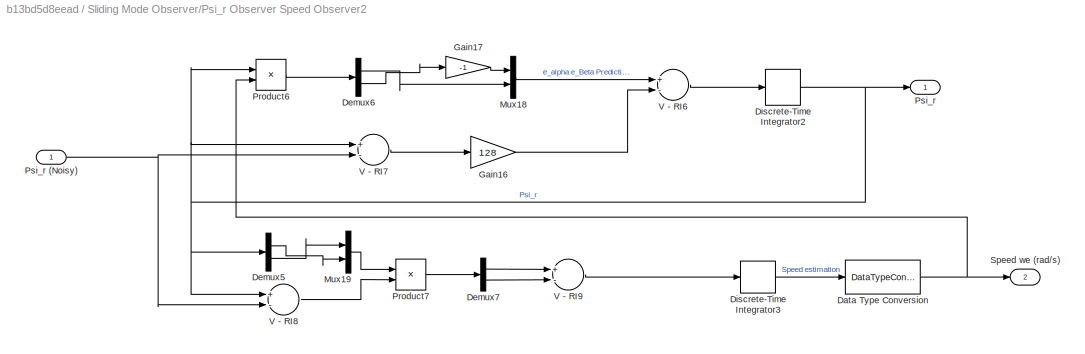
BLOCK [SubSystem] Sliding Mode Observer/Psi_r Observer Speed Observer2
  Ports = [1, 2]
  RequestExecContextInheritance = off
BLOCK [DataTypeConversion] Sliding Mode Observer/Psi_r Observer Speed Observer2/Data Type Conversion
  OutDataTypeStr = fixdt(1,16)
  OutMax = +5300 * 5 * (2*pi) / 60
  OutMin = -5300 * 5 * (2*pi) / 60
  RndMeth = Floor
  SaturateOnIntegerOverflow = off
BLOCK [Demux] Sliding Mode Observer/Psi_r Observer Speed Observer2/Demux5
  DisplayOption = bar
  Outputs = 2
  Ports = [1, 2]
BLOCK [Demux] Sliding Mode Observer/Psi_r Observer Speed Observer2/Demux6
  DisplayOption = bar
  Outputs = 2
  Ports = [1, 2]
BLOCK [Demux] Sliding Mode Observer/Psi_r Observer Speed Observer2/Demux7
  DisplayOption = bar
  Outputs = 2
  Ports = [1, 2]
BLOCK [DiscreteIntegrator] Sliding Mode Observer/Psi_r Observer Speed Observer2/Discrete-Time Integrator2
  LowerSaturationLimit = -15
  OutDataTypeStr = fixdt(1,16)
  OutMax = 24
  OutMin = -24
  Ports = [1, 1]
  SampleTime = -1
  UpperSaturationLimit = 15
  gainval = 1
BLOCK [DiscreteIntegrator] Sliding Mode Observer/Psi_r Observer Speed Observer2/Discrete-Time Integrator3
  OutDataTypeStr = fixdt(1,32)
  OutMax = 5300 * 5 * (2*pi) / 60
  OutMin = -5300 * 5 * (2*pi) / 60
  Ports = [1, 1]
  RndMeth = Simplest
  SampleTime = -1
  StateIdentifier = Speed
  gainval = 1000
BLOCK [Gain] Sliding Mode Observer/Psi_r Observer Speed Observer2/Gain16
  Gain = 128
  OutDataTypeStr = fixdt(1,16)
  OutMax = [24*2*128]
  OutMin = [-24*2*128]
  ParamDataTypeStr = Inherit: Inherit via internal rule
  SaturateOnIntegerOverflow = off
BLOCK [Gain] Sliding Mode Observer/Psi_r Observer Speed Observer2/Gain17
  Gain = -1
  ParamDataTypeStr = Inherit: Inherit via internal rule
  SaturateOnIntegerOverflow = off
BLOCK [Mux] Sliding Mode Observer/Psi_r Observer Speed Observer2/Mux18
  DisplayOption = bar
  Inputs = 2
  Ports = [2, 1]
BLOCK [Mux] Sliding Mode Observer/Psi_r Observer Speed Observer2/Mux19
  DisplayOption = bar
  Inputs = 2
  Ports = [2, 1]
BLOCK [Product] Sliding Mode Observer/Psi_r Observer Speed Observer2/Product6
  InputSameDT = off
  OutDataTypeStr = fixdt(1,32,12)
  Ports = [2, 1]
BLOCK [Product] Sliding Mode Observer/Psi_r Observer Speed Observer2/Product7
  InputSameDT = off
  OutDataTypeStr = fixdt(1,16)
  OutMax = 24*24
  OutMin = [-24*24]
  Ports = [2, 1]
  RndMeth = Simplest
BLOCK [Outport] Sliding Mode Observer/Psi_r Observer Speed Observer2/Psi_r
  IconDisplay = Port number
BLOCK [Inport] Sliding Mode Observer/Psi_r Observer Speed Observer2/Psi_r (Noisy)
  IconDisplay = Port number
BLOCK [Outport] Sliding Mode Observer/Psi_r Observer Speed Observer2/Speed we (rad//s)
  IconDisplay = Port number
  Port = 2
BLOCK [Sum] Sliding Mode Observer/Psi_r Observer Speed Observer2/V - RI6
  AccumDataTypeStr = Inherit: Same as first input
  InputSameDT = off
  Inputs = +-
  OutDataTypeStr = Inherit: Same as accumulator
  Ports = [2, 1]
  SaturateOnIntegerOverflow = off
BLOCK [Sum] Sliding Mode Observer/Psi_r Observer Speed Observer2/V - RI7
  InputSameDT = off
  Inputs = +-
  OutDataTypeStr = fixdt(1,16)
  OutMax = [24*2]
  OutMin = [-24*2]
  Ports = [2, 1]
  SaturateOnIntegerOverflow = off
BLOCK [Sum] Sliding Mode Observer/Psi_r Observer Speed Observer2/V - RI8
  AccumDataTypeStr = Inherit: Same as first input
  InputSameDT = off
  Inputs = +-
  OutDataTypeStr = Inherit: Same as accumulator
  Ports = [2, 1]
  RndMeth = Simplest
BLOCK [Sum] Sliding Mode Observer/Psi_r Observer Speed Observer2/V - RI9
  Inputs = +-
  OutDataTypeStr = fixdt(1,16)
  OutMax = [-24*24*2]
  OutMin = [-24*24*2]
  Ports = [2, 1]
  RndMeth = Simplest
BLOCK [DataTypeConversion] Sliding Mode Observer/Q0.1
  ConvertRealWorld = Stored Integer (SI)
  OutDataTypeStr = fixdt(0,16,16)
  RndMeth = Simplest
  SaturateOnIntegerOverflow = off
BLOCK [DataTypeConversion] Sliding Mode Observer/Q0.2
  OutDataTypeStr = fixdt(0,16,16)
  RndMeth = Simplest
  SaturateOnIntegerOverflow = off
BLOCK [DataTypeConversion] Sliding Mode Observer/Q0.3
  ConvertRealWorld = Stored Integer (SI)
  OutDataTypeStr = fixdt(0,16,16)
  RndMeth = Simplest
  SaturateOnIntegerOverflow = off
BLOCK [SubSystem] Sliding Mode Observer/SMO FxPt
  Ports = [2, 1]
  RequestExecContextInheritance = off
BLOCK [Gain] Sliding Mode Observer/SMO FxPt/1//L
  Gain = inv(.002)
  OutDataTypeStr = fixdt(1,16)
  OutMax = [24] * inv(.002) *2
  OutMin = [-24] * inv(.002) *2
  ParamDataTypeStr = Inherit: Inherit via internal rule
  SaturateOnIntegerOverflow = off
BLOCK [DiscreteIntegrator] Sliding Mode Observer/SMO FxPt/Discrete-Time Integrator
  OutDataTypeStr = fixdt(1,16)
  OutMax = [4.4]
  OutMin = [-4.4]
  Ports = [1, 1]
  SampleTime = -1
BLOCK [Gain] Sliding Mode Observer/SMO FxPt/Gain15
  Gain = 75
  OutDataTypeStr = fixdt(1,16)
  OutMax = [24]
  OutMin = [-24]
  ParamDataTypeStr = Inherit: Inherit via internal rule
BLOCK [Inport] Sliding Mode Observer/SMO FxPt/Iab
  IconDisplay = Port number
  Port = 2
BLOCK [Outport] Sliding Mode Observer/SMO FxPt/Psi_r
  IconDisplay = Port number
BLOCK [Gain] Sliding Mode Observer/SMO FxPt/R//L
  Gain = 3.15/.002
  OutDataTypeStr = fixdt(1,16)
  OutMax = [4.4] * 3.15/.002
  OutMin = [-4.4] * 3.15/.002
  ParamDataTypeStr = Inherit: Inherit via internal rule
  SaturateOnIntegerOverflow = off
BLOCK [Scope] Sliding Mode Observer/SMO FxPt/Scope1
  DataFormat = StructureWithTime
  Floating = off
  LimitDataPoints = off
  NumInputPorts = 2
  Ports = [2]
  SaveName = ScopeData1
  YMax = 39.9989~5
  YMin = -39.99988~-5
BLOCK [Scope] Sliding Mode Observer/SMO FxPt/Scope7
  DataFormat = StructureWithTime
  Floating = off
  LimitDataPoints = off
  NumInputPorts = 2
  Ports = [2]
  SaveName = ScopeData6
  TimeRange = 5
  YMax = 3.35877~5
  YMin = -3.23778~-5
BLOCK [Sum] Sliding Mode Observer/SMO FxPt/V - RI3
  AccumDataTypeStr = Inherit: Same as first input
  InputSameDT = off
  Inputs = +-
  OutDataTypeStr = Inherit: Same as accumulator
  Ports = [2, 1]
  SaturateOnIntegerOverflow = off
BLOCK [Sum] Sliding Mode Observer/SMO FxPt/V - RI4
  AccumDataTypeStr = Inherit: Same as first input
  InputSameDT = off
  Inputs = +-
  OutDataTypeStr = Inherit: Same as accumulator
  Ports = [2, 1]
  SaturateOnIntegerOverflow = off
BLOCK [Inport] Sliding Mode Observer/SMO FxPt/VAlphaBeta
  IconDisplay = Port number
BLOCK [Sum] Sliding Mode Observer/SMO FxPt/add4
  AccumDataTypeStr = Inherit: Same as first input
  IconShape = round
  InputSameDT = off
  Inputs = +-|
  OutDataTypeStr = Inherit: Same as accumulator
  Ports = [2, 1]
BLOCK [Scope] Sliding Mode Observer/Scope
  DataFormat = StructureWithTime
  Floating = off
  LimitDataPoints = off
  NumInputPorts = 2
  Ports = [2]
  SaveName = ScopeData1
  YMax = 1.12498~1.1243
  YMin = -0.125~-0.12492
BLOCK [Outport] Sliding Mode Observer/Sped (rad//s)
  IconDisplay = Port number
  Port = 2
BLOCK [Sum] Sliding Mode Observer/Sum1
  AccumDataTypeStr = Inherit: Same as first input
  IconShape = round
  InputSameDT = off
  Inputs = |++
  OutDataTypeStr = Inherit: Same as accumulator
  Ports = [2, 1]
  RndMeth = Simplest
  SaturateOnIntegerOverflow = off
BLOCK [Trigonometry] Sliding Mode Observer/Trigonometric Function
  ApproximationMethod = CORDIC
  NumberOfIterations = 15
  Operator = atan2
  Ports = [2, 1]
BLOCK [Inport] Sliding Mode Observer/V AlphaBeta
  IconDisplay = Port number
BLOCK [Constant] Startup Open-loop PWM duty cycle [0 1]
  OutDataTypeStr = Inherit: Inherit via back propagation
  Value = 0.55
BLOCK [SubSystem] Startup ramp
  Ports = [0, 1, 1]
  RequestExecContextInheritance = off
BLOCK [Outport] Startup ramp/Angle RAMP
  IconDisplay = Port number
BLOCK [Constant] Startup ramp/Constant2
  OutDataTypeStr = fixdt(0,16,32)
  SampleTime = .00005
  Value = DELTA_STARTUP_RAMP*2^-32
BLOCK [Delay] Startup ramp/Delay1
  DelayLength = 1
  InitialCondition = 0
  InputPortMap = u0
  Ports = [1, 1]
BLOCK [Delay] Startup ramp/Delay4
  DelayLength = 1
  InitialCondition = 0
  InputPortMap = u0
  Ports = [1, 1]
BLOCK [EnablePort] Startup ramp/Enable
  Ports = []
  StatesWhenEnabling = reset
BLOCK [DataTypeConversion] Startup ramp/Q0.3
  OutDataTypeStr = fixdt(0,16,16)
  RndMeth = Floor
  SaturateOnIntegerOverflow = off
BLOCK [Saturate] Startup ramp/Saturation1
  InputPortMap = u0
  LowerLimit = 0
  Ports = [1, 1]
  UpperLimit = DELTA_STARTUP_RAMP*2^-32*10/TS
BLOCK [Sum] Startup ramp/Sum2
  AccumDataTypeStr = fixdt(0,32,32)
  IconShape = round
  InputSameDT = off
  Inputs = |++
  OutDataTypeStr = Inherit: Same as accumulator
  Ports = [2, 1]
  RndMeth = Simplest
  SaturateOnIntegerOverflow = off
BLOCK [Sum] Startup ramp/Sum3
  AccumDataTypeStr = fixdt(0,16,16)
  IconShape = round
  InputSameDT = off
  Inputs = |++
  OutDataTypeStr = Inherit: Same as accumulator
  Ports = [2, 1]
  RndMeth = Simplest
  SaturateOnIntegerOverflow = off
BLOCK [Switch] Switch Startup (constant PWM duty cycle) then Closed Loop (Pot drive PWM duty cycle)
  Criteria = u2 ~= 0
  InputSameDT = off
  SaturateOnIntegerOverflow = off
  Threshold = 250
BLOCK [Switch] Switch Startup ramp Angle then Estimated Angle or QEI
  Criteria = u2 ~= 0
  InputSameDT = off
  SaturateOnIntegerOverflow = off
  Threshold = 250
BLOCK [SubSystem] Switch from OpenLoop to Closed Loop
  Ports = [1, 1]
  RequestExecContextInheritance = off
BLOCK [Outport] Switch from OpenLoop to Closed Loop/ClosedLoop 0//1
  IconDisplay = Port number
BLOCK [Delay] Switch from OpenLoop to Closed Loop/Delay1
  DelayLength = 1
  InitialCondition = [0]
  InputPortMap = u0
  Ports = [1, 1]
BLOCK [Logic] Switch from OpenLoop to Closed Loop/Logical Operator1
  AllPortsSameDT = off
  Operator = OR
  OutDataTypeStr = boolean
  Ports = [2, 1]
BLOCK [RateTransition] Switch from OpenLoop to Closed Loop/Rate Transition8
  OutPortSampleTime = .01
BLOCK [Inport] Switch from OpenLoop to Closed Loop/Speed
  IconDisplay = Port number
BLOCK [Reference] Switch from OpenLoop to Closed Loop/Switching Speed (rad//s Electrical)  REF=simulink/Logic and Bit
Operations/Compare
To Constant
  OutDataTypeStr = boolean
  Ports = [1, 1]
  SourceBlock = simulink/Logic and Bit\nOperations/Compare\nTo Constant
  SourceType = Compare To Constant
  ZeroCross = on
  const = 250
  relop = >
BLOCK [Reference] Tasks State Show base rate Task on pin D8 (PIM)  REF=MCHP_Blockset/Profiling/Tasks State
  MCHP_MASTERLINK = CRL_MCLV_V2_33EP256MC506_SlidingModeObserver_DualShunt_R2015a/Microchip Master
  MCHP_PORT = {Task D1 Running}{Task D1}15:1:D8;
  Ports = []
  SourceBlock = MCHP_Blockset/Profiling/Tasks State
  SourceType = MCU Over-Load (Profile execution time)
  TasksPin = D8
BLOCK [Terminator] Terminator
BLOCK [Terminator] Terminator1
BLOCK [SubSystem] Theta2PWM Optimized
  Ports = [2, 3]
  RequestExecContextInheritance = off
  VariantControl = Optimized
BLOCK [Bias] Theta2PWM Optimized/50% average duty-cycle
  Bias = ceil(PWMmax/2)
  SaturateOnIntegerOverflow = off
BLOCK [SubSystem] Theta2PWM Optimized/Calc Index
  Ports = [1, 1]
  RequestExecContextInheritance = off
BLOCK [Reference] Theta2PWM Optimized/Calc Index/Bitwise Operator1  REF=simulink/Logic and Bit
Operations/Bitwise
Operator
  BitMask = bin2dec('11011001')
  BitMaskRealWorld = Stored Integer
  NumInputPorts = 3
  Ports = [3, 1]
  SourceBlock = simulink/Logic and Bit\nOperations/Bitwise\nOperator
  SourceType = Bitwise Operator
  UseBitMask = off
  logicop = OR
BLOCK [DataTypeConversion] Theta2PWM Optimized/Calc Index/Data Type Conversion
  ConvertRealWorld = Stored Integer (SI)
  OutDataTypeStr = uint16
  RndMeth = Floor
  SaturateOnIntegerOverflow = off
BLOCK [Demux] Theta2PWM Optimized/Calc Index/Demux1
  DisplayOption = bar
  Outputs = 3
  Ports = [1, 3]
BLOCK [Gain] Theta2PWM Optimized/Calc Index/Gain6
  Gain = 4
  ParamDataTypeStr = Inherit: Inherit via internal rule
  SaturateOnIntegerOverflow = off
BLOCK [Gain] Theta2PWM Optimized/Calc Index/Gain7
  Gain = 2
  ParamDataTypeStr = Inherit: Inherit via internal rule
  SaturateOnIntegerOverflow = off
BLOCK [Outport] Theta2PWM Optimized/Calc Index/Idx
  IconDisplay = Port number
BLOCK [Inport] Theta2PWM Optimized/Calc Index/In1
  IconDisplay = Port number
BLOCK [RelationalOperator] Theta2PWM Optimized/Calc Index/Relational Operator3
  InputSameDT = off
  Operator = >
  OutDataTypeStr = fixdt(1,16)
  Ports = [2, 1]
BLOCK [RelationalOperator] Theta2PWM Optimized/Calc Index/Relational Operator4
  InputSameDT = off
  Operator = >
  OutDataTypeStr = fixdt(1,16)
  Ports = [2, 1]
BLOCK [RelationalOperator] Theta2PWM Optimized/Calc Index/Relational Operator5
  InputSameDT = off
  Operator = >
  OutDataTypeStr = fixdt(1,16)
  Ports = [2, 1]
BLOCK [Outport] Theta2PWM Optimized/Cos Sin
  IconDisplay = Port number
  Port = 3
BLOCK [DataTypeConversion] Theta2PWM Optimized/Data Type Conversion
  ConvertRealWorld = Stored Integer (SI)
  OutDataTypeStr = uint16
  RndMeth = Floor
  SaturateOnIntegerOverflow = off
BLOCK [Inport] Theta2PWM Optimized/Gain [0 PWMmax//2]
  IconDisplay = Port number
  OutMax = [PWMmax/2]
  OutMin = [-PWMmax/2]
  Port = 2
BLOCK [Gain] Theta2PWM Optimized/Gain2
  Gain = 2* pi
  OutDataTypeStr = fixdt(0,16,13)
  ParamDataTypeStr = Inherit: Inherit via internal rule
  RndMeth = Convergent
  SaturateOnIntegerOverflow = off
BLOCK [SubSystem] Theta2PWM Optimized/Maximum Duty-Cycle
  Ports = [1, 1]
  RequestExecContextInheritance = off
BLOCK [Constant] Theta2PWM Optimized/Maximum Duty-Cycle/Constant1
  OutDataTypeStr = uint16
  Value = PWMmax
BLOCK [Inport] Theta2PWM Optimized/Maximum Duty-Cycle/In1
  IconDisplay = Port number
BLOCK [MinMax] Theta2PWM Optimized/Maximum Duty-Cycle/MinMax1
  Function = max
  OutDataTypeStr = int16
  Ports = [1, 1]
  SaturateOnIntegerOverflow = off
BLOCK [Outport] Theta2PWM Optimized/Maximum Duty-Cycle/Out1
  IconDisplay = Port number
BLOCK [Sum] Theta2PWM Optimized/Maximum Duty-Cycle/Sum1
  AccumDataTypeStr = uint16
  InputSameDT = off
  Inputs = +-
  OutDataTypeStr = Inherit: Same as accumulator
  Ports = [2, 1]
  RndMeth = Simplest
  SaturateOnIntegerOverflow = off
BLOCK [Sum] Theta2PWM Optimized/Maximum Duty-Cycle/Sum2
  AccumDataTypeStr = uint16
  IconShape = round
  InputSameDT = off
  Inputs = |++
  OutDataTypeStr = Inherit: Same as accumulator
  Ports = [2, 1]
  RndMeth = Simplest
  SaturateOnIntegerOverflow = off
BLOCK [SubSystem] Theta2PWM Optimized/Minimum Duty-Cycle
  Ports = [1, 1]
  RequestExecContextInheritance = off
BLOCK [Bias] Theta2PWM Optimized/Minimum Duty-Cycle/Bias
  Bias = -round( (2e-6/5e-5) *PWMmax )
  SaturateOnIntegerOverflow = off
BLOCK [Inport] Theta2PWM Optimized/Minimum Duty-Cycle/In1
  IconDisplay = Port number
BLOCK [MinMax] Theta2PWM Optimized/Minimum Duty-Cycle/MinMax1
  OutDataTypeStr = int16
  Ports = [1, 1]
  SaturateOnIntegerOverflow = off
BLOCK [Outport] Theta2PWM Optimized/Minimum Duty-Cycle/Out1
  IconDisplay = Port number
BLOCK [Sum] Theta2PWM Optimized/Minimum Duty-Cycle/Sum2
  AccumDataTypeStr = uint16
  IconShape = round
  InputSameDT = off
  Inputs = |+-
  OutDataTypeStr = Inherit: Same as accumulator
  Ports = [2, 1]
  RndMeth = Simplest
  SaturateOnIntegerOverflow = off
BLOCK [Mux] Theta2PWM Optimized/Mux24
  DisplayOption = bar
  Inputs = 2
  Ports = [2, 1]
BLOCK [Outport] Theta2PWM Optimized/PWM abc
  IconDisplay = Port number
  Port = 2
BLOCK [SubSystem] Theta2PWM Optimized/SVM Boost
  Ports = [2, 1]
  RequestExecContextInheritance = off
BLOCK [Sum] Theta2PWM Optimized/SVM Boost/Add
  AccumDataTypeStr = Inherit: Same as first input
  InputSameDT = off
  OutDataTypeStr = Inherit: Same as accumulator
  Ports = [2, 1]
  RndMeth = Simplest
  SaturateOnIntegerOverflow = off
BLOCK [Sum] Theta2PWM Optimized/SVM Boost/Add1
  AccumDataTypeStr = Inherit: Same as first input
  InputSameDT = off
  Inputs = -+
  OutDataTypeStr = Inherit: Same as accumulator
  Ports = [2, 1]
  RndMeth = Simplest
  SaturateOnIntegerOverflow = off
BLOCK [Demux] Theta2PWM Optimized/SVM Boost/Demux
  DisplayOption = bar
  Outputs = 3
  Ports = [1, 3]
BLOCK [Demux] Theta2PWM Optimized/SVM Boost/Demux1
  DisplayOption = bar
  Outputs = 2
  Ports = [1, 2]
BLOCK [Gain] Theta2PWM Optimized/SVM Boost/Gain5
  Gain = 0.5
  ParamDataTypeStr = Inherit: Inherit via internal rule
  RndMeth = Simplest
  SaturateOnIntegerOverflow = off
BLOCK [Gain] Theta2PWM Optimized/SVM Boost/Gain8
  Gain = 2/sqrt(3)
  ParamDataTypeStr = Inherit: Inherit via internal rule
  RndMeth = Simplest
  SaturateOnIntegerOverflow = off
BLOCK [Inport] Theta2PWM Optimized/SVM Boost/Index
  IconDisplay = Port number
BLOCK [MultiPortSwitch] Theta2PWM Optimized/SVM Boost/Multiport [Min Max]
  DataPortOrder = Zero-based contiguous
  DiagnosticForDefault = None
  InputSameDT = off
  Inputs = 8
  Ports = [9, 1]
  SaturateOnIntegerOverflow = off
BLOCK [Mux] Theta2PWM Optimized/SVM Boost/Mux
  DisplayOption = bar
  Inputs = 2
  Ports = [2, 1]
BLOCK [Mux] Theta2PWM Optimized/SVM Boost/Mux1
  DisplayOption = bar
  Inputs = 2
  Ports = [2, 1]
BLOCK [Mux] Theta2PWM Optimized/SVM Boost/Mux3
  DisplayOption = bar
  Inputs = 2
  Ports = [2, 1]
BLOCK [Mux] Theta2PWM Optimized/SVM Boost/Mux4
  DisplayOption = bar
  Inputs = 2
  Ports = [2, 1]
BLOCK [Mux] Theta2PWM Optimized/SVM Boost/Mux6
  DisplayOption = bar
  Inputs = 2
  Ports = [2, 1]
BLOCK [Mux] Theta2PWM Optimized/SVM Boost/Mux7
  DisplayOption = bar
  Inputs = 2
  Ports = [2, 1]
BLOCK [Inport] Theta2PWM Optimized/SVM Boost/abc
  IconDisplay = Port number
  Port = 2
BLOCK [Outport] Theta2PWM Optimized/SVM Boost/abc boost
  IconDisplay = Port number
BLOCK [Product] Theta2PWM Optimized/Scaling Max gain is PWMmax//2
  InputSameDT = off
  Inputs = **
  OutDataTypeStr = int16
  Ports = [2, 1]
  RndMeth = Floor
  SaturateOnIntegerOverflow = off
BLOCK [SubSystem] Theta2PWM Optimized/Sine Simpler
  Commented = on
  Ports = [1, 2]
  RequestExecContextInheritance = off
BLOCK [Bias] Theta2PWM Optimized/Sine Simpler/Bias1
  Bias = 0.25
  SaturateOnIntegerOverflow = off
BLOCK [SubSystem] Theta2PWM Optimized/Sine Simpler/Look-Up Table (sin)
  Description = Replaced Block
  Ports = [1, 1]
  RequestExecContextInheritance = off
BLOCK [Ground] Theta2PWM Optimized/Sine Simpler/Look-Up Table (sin)/Ground1
BLOCK [Inport] Theta2PWM Optimized/Sine Simpler/Look-Up Table (sin)/In1
  IconDisplay = Port number
BLOCK [Outport] Theta2PWM Optimized/Sine Simpler/Look-Up Table (sin)/Out1
  IconDisplay = Port number
BLOCK [Terminator] Theta2PWM Optimized/Sine Simpler/Look-Up Table (sin)/Terminator1
BLOCK [SubSystem] Theta2PWM Optimized/Sine Simpler/Look-Up Table (sin)1
  Description = Replaced Block
  Ports = [1, 1]
  RequestExecContextInheritance = off
BLOCK [Ground] Theta2PWM Optimized/Sine Simpler/Look-Up Table (sin)1/Ground1
BLOCK [Inport] Theta2PWM Optimized/Sine Simpler/Look-Up Table (sin)1/In1
  IconDisplay = Port number
BLOCK [Outport] Theta2PWM Optimized/Sine Simpler/Look-Up Table (sin)1/Out1
  IconDisplay = Port number
BLOCK [Terminator] Theta2PWM Optimized/Sine Simpler/Look-Up Table (sin)1/Terminator1
BLOCK [Reference] Theta2PWM Optimized/Sine Simpler/Sine1  REF=simulink/Lookup
Tables/Sine
  Formula = sin(2*pi*u) and cos(2*pi*u)
  InternalRulePriority = Speed
  NumDataPoints = (2^5)+1
  OutputWordLength = 16
  Ports = [1, 2]
  SourceBlock = simulink/Lookup\nTables/Sine
  SourceType = Sine and Cosine
BLOCK [Inport] Theta2PWM Optimized/Sine Simpler/Theta
  IconDisplay = Port number
BLOCK [Outport] Theta2PWM Optimized/Sine Simpler/cos(2*pi*u)
  IconDisplay = Port number
BLOCK [Outport] Theta2PWM Optimized/Sine Simpler/sin(2*pi*u)
  IconDisplay = Port number
  Port = 2
BLOCK [Terminator] Theta2PWM Optimized/Terminator
BLOCK [Terminator] Theta2PWM Optimized/Terminator1
BLOCK [Inport] Theta2PWM Optimized/Theta
  IconDisplay = Port number
  OutDataTypeStr = fixdt(0,16,16)
BLOCK [Trigonometry] Theta2PWM Optimized/Trigonometric Function
  ApproximationMethod = CORDIC
  NumberOfIterations = 15
  Operator = sincos
  Ports = [1, 2]
BLOCK [Outport] Theta2PWM Optimized/idx
  IconDisplay = Port number
BLOCK [SubSystem] Theta2PWM Optimized/inv Clark
  Ports = [1, 1]
  RequestExecContextInheritance = off
BLOCK [Product] Theta2PWM Optimized/inv Clark/Clarke1
  InputSameDT = off
  Multiplication = Matrix(*)
  Ports = [2, 1]
  RndMeth = Convergent
  SaturateOnIntegerOverflow = off
BLOCK [Constant] Theta2PWM Optimized/inv Clark/Constant Magnitude
  OutDataTypeStr = Inherit: Inherit via back propagation
  SampleTime = -1
  Value = [1 0 ; -1/2 sqrt(3)/2 ;-1/2 -sqrt(3)/2]'
BLOCK [Demux] Theta2PWM Optimized/inv Clark/Demux
  DisplayOption = bar
  Outputs = 2
  Ports = [1, 2]
BLOCK [Gain] Theta2PWM Optimized/inv Clark/Gain
  Gain = sqrt(3)/2
  ParamDataTypeStr = Inherit: Inherit via internal rule
  SaturateOnIntegerOverflow = off
BLOCK [Gain] Theta2PWM Optimized/inv Clark/Gain3
  Gain = -1/2
  ParamDataTypeStr = Inherit: Inherit via internal rule
  RndMeth = Simplest
  SaturateOnIntegerOverflow = off
BLOCK [Math] Theta2PWM Optimized/inv Clark/Math Function
  Operator = transpose
  Ports = [1, 1]
BLOCK [Mux] Theta2PWM Optimized/inv Clark/Mux
  DisplayOption = bar
  Inputs = 3
  Ports = [3, 1]
BLOCK [Sum] Theta2PWM Optimized/inv Clark/Sum
  AccumDataTypeStr = Inherit: Same as first input
  InputSameDT = off
  Ports = [2, 1]
  RndMeth = Simplest
  SaturateOnIntegerOverflow = off
BLOCK [Sum] Theta2PWM Optimized/inv Clark/Sum1
  AccumDataTypeStr = Inherit: Same as first input
  InputSameDT = off
  Inputs = +-
  Ports = [2, 1]
  RndMeth = Simplest
  SaturateOnIntegerOverflow = off
BLOCK [Outport] Theta2PWM Optimized/inv Clark/abc
  IconDisplay = Port number
BLOCK [Inport] Theta2PWM Optimized/inv Clark/alpha beta
  IconDisplay = Port number
BLOCK [Reference] Timer Info  REF=MCHP_Blockset/System Info/Timer Info
  MCHP_MASTERLINK = CRL_MCLV_V2_33EP256MC506_SlidingModeObserver_DualShunt_R2015a/Microchip Master
  Ports = []
  SourceBlock = MCHP_Blockset/System Info/Timer Info
BLOCK [Reference] UART Configuration  REF=MCHP_Blockset/BUS UART/UART Configuration
  ALT_IO = on
  BAUD_Choice = Dynamic Options
  BAUD_Choice_IR = Dynamic Options
  BAUD_Choice_IR_InitSeq = Dynamic Options
  BAUD_Choice_IR_InitSeq_TXT = 0
  BAUD_Choice_IR_TXT = []
  BAUD_Choice_InitSeq = Dynamic Options
  BAUD_Choice_InitSeq_TXT = 110         [-0.00%]
  BAUD_Choice_TXT = 921600         [-0.06%]
  BAUD_Custom = 115200
  BAUD_Custom_InitSeq = 0
  DuplexMode = Full duplex (default)
  FlowControl = None
  IRDA = off
  InitSequence = 'Hello World'
  InitSequence_chkbox = off
  MCHP_COM_ExtPil = off
  MCHP_MASTERLINK = CRL_MCLV_V2_33EP256MC506_SlidingModeObserver_DualShunt_R2015a/Microchip Master
  MCHP_PORT = {UART2  Rx}{U2RX}3:0:P53;{UART2  Tx}{U2TX}3:1:P97;
  PIN_CTS = Dynamic Options
  PIN_CTS_TXT = A4 / P20 / Pin[33]
  PIN_RTS = Dynamic Options
  PIN_RTS_TXT = A4 / P20 / Pin[33]
  PIN_RX = Dynamic Options
  PIN_RX_Inv = off
  PIN_RX_TXT = C5 / P53 / Pin[37]
  PIN_TX = Dynamic Options
  PIN_TX_Inv = off
  PIN_TX_TXT = F1 / P97 / Pin[59]
  ParityBit = No parity (default)
  Ports = []
  RX_CIRCULAR_SIZE = 32
  RX_IMPLEMENTATION = Simplest (4 bytes internal buffer only)
  RX_IMPLEMENTATION_default = Circular Buffer
  RX_INT_PRIORITY = 1
  RX_INT_WHEN = receive 1 character
  SourceBlock = MCHP_Blockset/BUS UART/UART Configuration
  SourceType = Configuration for UART peripheral
  StopBit = 1 stop bit (default)
  TX_CIRCULAR_SIZE = 32
  TX_DMA_CHANNEL = 0   (Lowest Priority)
  TX_DMA_SIZE = 60
  TX_IMPLEMENTATION = DMA Ping-Pong Mode
  TX_IMPLEMENTATION_default = Circular Buffer
  TX_INTERRUPT_PROTECTION = Do not send on conflict (default)
  TX_INTERRUPT_PROTECTION_default = Do not send on conflict (default)
  TX_INT_PRIORITY = 2
  TX_INT_WHEN = is empty & last char is sent
  TX_INT_WHEN_default = is empty & last char is sent
  TX_TASK_PROTECTION = Delay tasks (default)
  UART_REF = 2
BLOCK [Reference] UART Tx-Matlab  REF=MCHP_Blockset/BUS UART/UART Tx-Matlab
  AllOrNothing = on
  CHANNELS = [1 2 3 4 5]
  MCHP_COMPILED_INFO = CompiledSampleTime= [0.00020000000000000001   0 ];CompiledInportDataTypes=[  4   4   4   4   5 ];CompiledInportDataWidth=[1  1  1  1  1];
  MCHP_MASTERLINK = CRL_MCLV_V2_33EP256MC506_SlidingModeObserver_DualShunt_R2015a/Microchip Master
  Ports = [5]
  SampleTime = .0002
  SourceBlock = MCHP_Blockset/BUS UART/UART Tx-Matlab
  SourceType = Higl Level UART protocol
  UART_REF = 2
BLOCK [DataTypeConversion] int to uint1
  ConvertRealWorld = Stored Integer (SI)
  OutDataTypeStr = int16
  RndMeth = Floor
  SaturateOnIntegerOverflow = off
BLOCK [DataTypeConversion] int to uint2
  ConvertRealWorld = Stored Integer (SI)
  OutDataTypeStr = uint16
  RndMeth = Floor
  SaturateOnIntegerOverflow = off
BLOCK [DataTypeConversion] int to uint3
  ConvertRealWorld = Stored Integer (SI)
  OutDataTypeStr = int16
  RndMeth = Floor
  SaturateOnIntegerOverflow = off
BLOCK [DataTypeConversion] int to uint4
  ConvertRealWorld = Stored Integer (SI)
  OutDataTypeStr = int16
  RndMeth = Floor
  SaturateOnIntegerOverflow = off
BLOCK [DataTypeConversion] int to uint7
  ConvertRealWorld = Stored Integer (SI)
  OutDataTypeStr = int16
  RndMeth = Floor
  SaturateOnIntegerOverflow = off
BLOCK [Reference] picgui Graphical interface  REF=MCHP_Blockset/BUS UART/picgui
Graphical interface
  Nothing = 0
  Ports = []
  SourceBlock = MCHP_Blockset/BUS UART/picgui\nGraphical interface
BLOCK [SubSystem] reverse sign
  Ports = [2, 1]
  RequestExecContextInheritance = off
BLOCK [Reference] reverse sign/Compare To Zero1  REF=simulink/Logic and Bit
Operations/Compare
To Zero
  OutDataTypeStr = boolean
  Ports = [1, 1]
  SourceBlock = simulink/Logic and Bit\nOperations/Compare\nTo Zero
  SourceType = Compare To Zero
  ZeroCross = on
  relop = >=
BLOCK [Inport] reverse sign/Gain
  IconDisplay = Port number
  Port = 2
BLOCK [Gain] reverse sign/Gain4
  Gain = -1
  ParamDataTypeStr = Inherit: Inherit via internal rule
BLOCK [Outport] reverse sign/Gain_
  IconDisplay = Port number
BLOCK [Inport] reverse sign/Sign
  IconDisplay = Port number
BLOCK [Switch] reverse sign/Switch3
  Criteria = u2 ~= 0
  InputSameDT = off
  SaturateOnIntegerOverflow = off
  Threshold = 250
BLOCK [Reference] send MCU load 1000 is 100% load  REF=MCHP_Blockset/BUS UART/UART Tx-Matlab
  AllOrNothing = on
  CHANNELS = 5
  Commented = on
  MCHP_COMPILED_INFO = CompiledSampleTime= [0.0070000000000000001   0 ];CompiledInportDataTypes=[  5 ];CompiledInportDataWidth=[1];
  MCHP_MASTERLINK = CRL_MCLV_V2_33EP256MC506_SlidingModeObserver_DualShunt_R2015a/Microchip Master
  Ports = [1]
  SampleTime = -1
  SourceBlock = MCHP_Blockset/BUS UART/UART Tx-Matlab
  SourceType = Higl Level UART protocol
  UART_REF = 2
ANNOTATION Clark1: Input is a vector of 3 elements, 3rd element is not beeing used
ANNOTATION Clark1: k = 2/3 : invariant Magnitude
ANNOTATION DUAL SHUNT Center Aligned/MOTOR - Board Sensor: ADC: Block output is updated after each trig sequence thus: - AN0, AN1, AN2 block output updated at each step. - AN10 and AN13 updated alternatively each 2 steps.
ANNOTATION Sliding Mode Observer/Atan x1: tan(-x) = -tan(x)
ANNOTATION Sliding Mode Observer/Atan x1: tan(x) = \pi/2 - tan(1/x)
ANNOTATION Sliding Mode Observer/Atan x2: tan(-x) = -tan(x)
ANNOTATION Sliding Mode Observer/Atan x2: tan(x) = \pi/2 - tan(1/x)
ANNOTATION Sliding Mode Observer/SMO FxPt: Mevey PhD eq 6.2
ANNOTATION Sliding Mode Observer/SMO FxPt: v = R*i + L*di/dt i + d\Psi_r /dt \downarrow \Psi_r = \int{(v-R*i)dt} - L*i \theta_r = arctan(\Psi_{r,\beta}/\Psi_{r,\alpha})
ANNOTATION Theta2PWM Optimized/Sine Simpler: Gain is about 2us (70 MIPS)
ANNOTATION Theta2PWM Optimized/inv Clark: Transposed version is better optimized with DSP (optional) No impact on no DSP version
ANNOTATION Theta2PWM Optimized/inv Clark: k = 2/3 : invariant Magnitude
LINE Angle from QEI sensor/Bias:1 -> Angle from QEI sensor/Angle:1
LINE Angle from QEI sensor/Gain3:1 -> Angle from QEI sensor/Q0.1:1
LINE Angle from QEI sensor/Q0.1:1 -> Angle from QEI sensor/Bias:1
LINE Angle from QEI sensor/Q0.2:1 -> Angle from QEI sensor/Gain3:1
LINE Angle from QEI sensor/QEI:1 -> Angle from QEI sensor/Q0.2:1
NET Angle from QEI sensor:1 -> Manual Switch Use Sensorless Estimation or QEI (if available):2, QEIAngle:1
LINE Button S2:1 -> Terminator1:1
LINE Button S3:1 -> Terminator:1
LINE Clark1/Clarke1:1 -> Clark1/alpha beta:1
LINE Clark1/Constant Magnitude:1 -> Clark1/Clarke1:1
LINE Clark1/Data Type Conversion:1 -> Clark1/Clarke1:2
LINE Clark1/ab(c):1 -> Clark1/Data Type Conversion:1
NET Clark1:1 -> Demux1:1, Sliding Mode Observer:2
LINE Compare To Zero:1 -> Goto1:1
LINE Compute Voltage applied Within Alpha Beta Space/Abs:1 -> Compute Voltage applied Within Alpha Beta Space/Product1:2
LINE Compute Voltage applied Within Alpha Beta Space/CosSin:1 -> Compute Voltage applied Within Alpha Beta Space/Delay:1
LINE Compute Voltage applied Within Alpha Beta Space/DC Bus Voltage:1 -> Compute Voltage applied Within Alpha Beta Space/Product3:2
LINE Compute Voltage applied Within Alpha Beta Space/Delay:1 -> Compute Voltage applied Within Alpha Beta Space/Product1:1
LINE Compute Voltage applied Within Alpha Beta Space/Gain:1 -> Compute Voltage applied Within Alpha Beta Space/Abs:1
LINE Compute Voltage applied Within Alpha Beta Space/Product1:1 -> Compute Voltage applied Within Alpha Beta Space/Product3:1
LINE Compute Voltage applied Within Alpha Beta Space/Product3:1 -> Compute Voltage applied Within Alpha Beta Space/ValphaBeta:1
NET Compute Voltage applied Within Alpha Beta Space:1 -> Demux2:1, Sliding Mode Observer:1
LINE Constant3:1 -> Delay3:1
LINE Counter Free-Running:1 -> Data Type Conversion:1
LINE DUAL SHUNT Center Aligned/MOTOR - Board Sensor/ADC:1 -> DUAL SHUNT Center Aligned/MOTOR - Board Sensor/conv to unsigned:1
LINE DUAL SHUNT Center Aligned/MOTOR - Board Sensor/ADC:2 -> DUAL SHUNT Center Aligned/MOTOR - Board Sensor/Q1.15:1
LINE DUAL SHUNT Center Aligned/MOTOR - Board Sensor/ADC:3 -> DUAL SHUNT Center Aligned/MOTOR - Board Sensor/Mux1:2
LINE DUAL SHUNT Center Aligned/MOTOR - Board Sensor/ADC:4 -> DUAL SHUNT Center Aligned/MOTOR - Board Sensor/Mux1:1
LINE DUAL SHUNT Center Aligned/MOTOR - Board Sensor/ADC:5 -> DUAL SHUNT Center Aligned/MOTOR - Board Sensor/Not used:1
LINE DUAL SHUNT Center Aligned/MOTOR - Board Sensor/From5:1 -> DUAL SHUNT Center Aligned/MOTOR - Board Sensor/Rate Transition4:1
LINE DUAL SHUNT Center Aligned/MOTOR - Board Sensor/Gain1:1 -> DUAL SHUNT Center Aligned/MOTOR - Board Sensor/Scale Ia Ib to (A):1
LINE DUAL SHUNT Center Aligned/MOTOR - Board Sensor/Mux1:1 -> DUAL SHUNT Center Aligned/MOTOR - Board Sensor/Gain1:1
LINE DUAL SHUNT Center Aligned/MOTOR - Board Sensor/Q0.2:1 -> DUAL SHUNT Center Aligned/MOTOR - Board Sensor/Theta:1
LINE DUAL SHUNT Center Aligned/MOTOR - Board Sensor/Q1.15:1 -> DUAL SHUNT Center Aligned/MOTOR - Board Sensor/Pot:1
LINE DUAL SHUNT Center Aligned/MOTOR - Board Sensor/Rate Transition4:1 -> DUAL SHUNT Center Aligned/MOTOR - Board Sensor/encoder scaled:1
LINE DUAL SHUNT Center Aligned/MOTOR - Board Sensor/Scale DC BUS  (V):1 -> DUAL SHUNT Center Aligned/MOTOR - Board Sensor/DC Bus (V):1
LINE DUAL SHUNT Center Aligned/MOTOR - Board Sensor/Scale Ia Ib to (A):1 -> DUAL SHUNT Center Aligned/MOTOR - Board Sensor/Iab (A):1
LINE DUAL SHUNT Center Aligned/MOTOR - Board Sensor/conv to unsigned:1 -> DUAL SHUNT Center Aligned/MOTOR - Board Sensor/Scale DC BUS  (V):1
LINE DUAL SHUNT Center Aligned/MOTOR - Board Sensor/encoder scaled/Direct Lookup Table (n-D):1 -> DUAL SHUNT Center Aligned/MOTOR - Board Sensor/encoder scaled/theta_enc_fract:1
LINE DUAL SHUNT Center Aligned/MOTOR - Board Sensor/encoder scaled/Q0.4:1 -> DUAL SHUNT Center Aligned/MOTOR - Board Sensor/encoder scaled/Rate Transition4:1
LINE DUAL SHUNT Center Aligned/MOTOR - Board Sensor/encoder scaled/QEI:1 -> DUAL SHUNT Center Aligned/MOTOR - Board Sensor/encoder scaled/Direct Lookup Table (n-D):1
LINE DUAL SHUNT Center Aligned/MOTOR - Board Sensor/encoder scaled/Rate Transition4:1 -> DUAL SHUNT Center Aligned/MOTOR - Board Sensor/encoder scaled/QEI:1
LINE DUAL SHUNT Center Aligned/MOTOR - Board Sensor/encoder scaled/Rst:1 -> DUAL SHUNT Center Aligned/MOTOR - Board Sensor/encoder scaled/Q0.4:1
LINE DUAL SHUNT Center Aligned/MOTOR - Board Sensor/encoder scaled:1 -> DUAL SHUNT Center Aligned/MOTOR - Board Sensor/Q0.2:1
LINE DUAL SHUNT Center Aligned/MOTOR - Board Sensor/idx (in):1 -> DUAL SHUNT Center Aligned/MOTOR - Board Sensor/Terminator1:1
LINE DUAL SHUNT Center Aligned/MOTOR - Board Sensor:1 -> DUAL SHUNT Center Aligned/DC Bus (V):1
LINE DUAL SHUNT Center Aligned/MOTOR - Board Sensor:2 -> DUAL SHUNT Center Aligned/Iab (A):1
LINE DUAL SHUNT Center Aligned/MOTOR - Board Sensor:3 -> DUAL SHUNT Center Aligned/Theta [0-1]:1
LINE DUAL SHUNT Center Aligned/MOTOR - Board Sensor:4 -> DUAL SHUNT Center Aligned/Pot [-1 1]:1
LINE DUAL SHUNT Center Aligned/MOTOR Cmd/Dead time Compensation:1 -> DUAL SHUNT Center Aligned/MOTOR Cmd/int to uint:1
LINE DUAL SHUNT Center Aligned/MOTOR Cmd/Demux:1 -> DUAL SHUNT Center Aligned/MOTOR Cmd/PWM High Speed:1
LINE DUAL SHUNT Center Aligned/MOTOR Cmd/Demux:2 -> DUAL SHUNT Center Aligned/MOTOR Cmd/PWM High Speed:2
LINE DUAL SHUNT Center Aligned/MOTOR Cmd/Demux:3 -> DUAL SHUNT Center Aligned/MOTOR Cmd/PWM High Speed:3
LINE DUAL SHUNT Center Aligned/MOTOR Cmd/PWM (abc):1 -> DUAL SHUNT Center Aligned/MOTOR Cmd/Dead time Compensation:1
LINE DUAL SHUNT Center Aligned/MOTOR Cmd/Saturation low side turn on errate workaround + errata for Phase shift (times 2):1 -> DUAL SHUNT Center Aligned/MOTOR Cmd/Demux:1
LINE DUAL SHUNT Center Aligned/MOTOR Cmd/idx in:1 -> DUAL SHUNT Center Aligned/MOTOR Cmd/idx out:1
LINE DUAL SHUNT Center Aligned/MOTOR Cmd/int to uint:1 -> DUAL SHUNT Center Aligned/MOTOR Cmd/Saturation low side turn on errate workaround + errata for Phase shift (times 2):1
LINE DUAL SHUNT Center Aligned/MOTOR Cmd:1 -> DUAL SHUNT Center Aligned/MOTOR - Board Sensor:1
LINE DUAL SHUNT Center Aligned/PWM (abc):1 -> DUAL SHUNT Center Aligned/MOTOR Cmd:2
LINE DUAL SHUNT Center Aligned/idx (in):1 -> DUAL SHUNT Center Aligned/MOTOR Cmd:1
LINE DUAL SHUNT Center Aligned:1 -> Goto2:1
LINE DUAL SHUNT Center Aligned:2 -> Angle from QEI sensor:1
LINE DUAL SHUNT Center Aligned:3 -> Invert Current Sign For reversed rotation:2
LINE DUAL SHUNT Center Aligned:4 -> Compute Voltage applied Within Alpha Beta Space:3
LINE Data Type Conversion:1 -> LED 1:1
NET Delay3:1 -> Compare To Zero:1, Goto:1
LINE Demux1:1 -> Rate Transition2:1
LINE Demux1:2 -> Rate Transition3:1
LINE Demux2:1 -> Rate Transition:1
LINE Demux2:2 -> Rate Transition1:1
LINE From1:1 -> Logical Operator:1
LINE From5:1 -> Rate Transition11:1
LINE From6:1 -> LED 2:1
LINE From7:1 -> Rate Transition7:1
LINE From8:1 -> Rate Transition10:1
LINE From:1 -> Rate Transition8:1
LINE Gain1:1 -> Rate Transition9:1
LINE Gain2:1 -> Rate Transition6:1
LINE Gain3:1 -> send MCU load 1000 is 100% load:1
LINE Invert Current Sign For reversed rotation/Compare To Zero1:1 -> Invert Current Sign For reversed rotation/Switch3:2
LINE Invert Current Sign For reversed rotation/Gain4:1 -> Invert Current Sign For reversed rotation/Switch3:3
NET Invert Current Sign For reversed rotation/Gain:1 -> Invert Current Sign For reversed rotation/Gain4:1, Invert Current Sign For reversed rotation/Switch3:1
LINE Invert Current Sign For reversed rotation/Iab:1 -> Invert Current Sign For reversed rotation/Compare To Zero1:1
LINE Invert Current Sign For reversed rotation/Switch3:1 -> Invert Current Sign For reversed rotation/Iab_ :1
LINE Invert Current Sign For reversed rotation:1 -> Clark1:1
LINE Logical Operator1:1 -> Logical Operator2:2
LINE Logical Operator2:1 -> Rate Transition4:1
LINE Logical Operator:1 -> Logical Operator2:1
LINE MCU Load D8 - TestPoint:1 -> MCU total Load [0 1]:1
LINE MCU total Load [0 1]:1 -> Gain3:1
LINE Manual Switch Use Sensorless Estimation or QEI (if available):1 -> Switch Startup ramp Angle then Estimated Angle or QEI:1
LINE Potentiometer output From the Motor block:1 -> Rate Transition5:1
LINE Rate Transition10:1 -> Switch Startup ramp Angle then Estimated Angle or QEI:2
LINE Rate Transition11:1 -> int to uint2:1
LINE Rate Transition1:1 -> int to uint1:1
LINE Rate Transition2:1 -> int to uint3:1
LINE Rate Transition3:1 -> int to uint4:1
LINE Rate Transition4:1 -> Startup ramp:enable
LINE Rate Transition5:1 -> Saturation:1
LINE Rate Transition6:1 -> Theta2PWM Optimized:2
LINE Rate Transition7:1 -> Switch Startup (constant PWM duty cycle) then Closed Loop (Pot drive PWM duty cycle):2
LINE Rate Transition8:1 -> Logical Operator1:1
NET Rate Transition9:1 -> Compute Voltage applied Within Alpha Beta Space:1, Invert Current Sign For reversed rotation:1
LINE Rate Transition:1 -> int to uint7:1
NET Saturation:1 -> Sign:1, Switch Startup (constant PWM duty cycle) then Closed Loop (Pot drive PWM duty cycle):1
LINE Sign:1 -> reverse sign:1
LINE Sliding Mode Observer/Atan x1:1 -> Sliding Mode Observer/Q0.3:1
LINE Sliding Mode Observer/Bias:1 -> Sliding Mode Observer/Scope:1
NET Sliding Mode Observer/Demux2:1 -> Sliding Mode Observer/Gain1:1, Sliding Mode Observer/Trigonometric Function:2
NET Sliding Mode Observer/Demux2:2 -> Sliding Mode Observer/Atan x1:2, Sliding Mode Observer/Trigonometric Function:1
LINE Sliding Mode Observer/Gain1:1 -> Sliding Mode Observer/Atan x1:1
LINE Sliding Mode Observer/Gain2:1 -> Sliding Mode Observer/Q0.2:1
LINE Sliding Mode Observer/Gain3:1 -> Sliding Mode Observer/Q0.1:1
LINE Sliding Mode Observer/I AlphaBeta:1 -> Sliding Mode Observer/SMO FxPt:2
NET Sliding Mode Observer/Psi_r Observer Speed Observer2/Data Type Conversion:1 -> Sliding Mode Observer/Psi_r Observer Speed Observer2/Product6:2, Sliding Mode Observer/Psi_r Observer Speed Observer2/Speed we (rad//s):1
LINE Sliding Mode Observer/Psi_r Observer Speed Observer2/Demux5:1 -> Sliding Mode Observer/Psi_r Observer Speed Observer2/Mux19:2
LINE Sliding Mode Observer/Psi_r Observer Speed Observer2/Demux5:2 -> Sliding Mode Observer/Psi_r Observer Speed Observer2/Mux19:1
LINE Sliding Mode Observer/Psi_r Observer Speed Observer2/Demux6:1 -> Sliding Mode Observer/Psi_r Observer Speed Observer2/Mux18:2
LINE Sliding Mode Observer/Psi_r Observer Speed Observer2/Demux6:2 -> Sliding Mode Observer/Psi_r Observer Speed Observer2/Gain17:1
LINE Sliding Mode Observer/Psi_r Observer Speed Observer2/Demux7:1 -> Sliding Mode Observer/Psi_r Observer Speed Observer2/V - RI9:1
LINE Sliding Mode Observer/Psi_r Observer Speed Observer2/Demux7:2 -> Sliding Mode Observer/Psi_r Observer Speed Observer2/V - RI9:2
NET Sliding Mode Observer/Psi_r Observer Speed Observer2/Discrete-Time Integrator2:1 -> Sliding Mode Observer/Psi_r Observer Speed Observer2/Demux5:1, Sliding Mode Observer/Psi_r Observer Speed Observer2/Product6:1, Sliding Mode Observer/Psi_r Observer Speed Observer2/Psi_r:1, Sliding Mode Observer/Psi_r Observer Speed Observer2/V - RI7:1, Sliding Mode Observer/Psi_r Observer Speed Observer2/V - RI8:1
LINE Sliding Mode Observer/Psi_r Observer Speed Observer2/Discrete-Time Integrator3:1 -> Sliding Mode Observer/Psi_r Observer Speed Observer2/Data Type Conversion:1
LINE Sliding Mode Observer/Psi_r Observer Speed Observer2/Gain16:1 -> Sliding Mode Observer/Psi_r Observer Speed Observer2/V - RI6:2
LINE Sliding Mode Observer/Psi_r Observer Speed Observer2/Gain17:1 -> Sliding Mode Observer/Psi_r Observer Speed Observer2/Mux18:1
LINE Sliding Mode Observer/Psi_r Observer Speed Observer2/Mux18:1 -> Sliding Mode Observer/Psi_r Observer Speed Observer2/V - RI6:1
LINE Sliding Mode Observer/Psi_r Observer Speed Observer2/Mux19:1 -> Sliding Mode Observer/Psi_r Observer Speed Observer2/Product7:1
LINE Sliding Mode Observer/Psi_r Observer Speed Observer2/Product6:1 -> Sliding Mode Observer/Psi_r Observer Speed Observer2/Demux6:1
LINE Sliding Mode Observer/Psi_r Observer Speed Observer2/Product7:1 -> Sliding Mode Observer/Psi_r Observer Speed Observer2/Demux7:1
NET Sliding Mode Observer/Psi_r Observer Speed Observer2/Psi_r (Noisy):1 -> Sliding Mode Observer/Psi_r Observer Speed Observer2/V - RI7:2, Sliding Mode Observer/Psi_r Observer Speed Observer2/V - RI8:2
LINE Sliding Mode Observer/Psi_r Observer Speed Observer2/V - RI6:1 -> Sliding Mode Observer/Psi_r Observer Speed Observer2/Discrete-Time Integrator2:1
LINE Sliding Mode Observer/Psi_r Observer Speed Observer2/V - RI7:1 -> Sliding Mode Observer/Psi_r Observer Speed Observer2/Gain16:1
LINE Sliding Mode Observer/Psi_r Observer Speed Observer2/V - RI8:1 -> Sliding Mode Observer/Psi_r Observer Speed Observer2/Product7:2
LINE Sliding Mode Observer/Psi_r Observer Speed Observer2/V - RI9:1 -> Sliding Mode Observer/Psi_r Observer Speed Observer2/Discrete-Time Integrator3:1
LINE Sliding Mode Observer/Psi_r Observer Speed Observer2:1 -> Sliding Mode Observer/Demux2:1
NET Sliding Mode Observer/Psi_r Observer Speed Observer2:2 -> Sliding Mode Observer/Gain2:1, Sliding Mode Observer/Sped (rad//s):1
NET Sliding Mode Observer/Q0.1:1 -> Sliding Mode Observer/Scope:2, Sliding Mode Observer/Sum1:1
LINE Sliding Mode Observer/Q0.2:1 -> Sliding Mode Observer/Sum1:2
LINE Sliding Mode Observer/Q0.3:1 -> Sliding Mode Observer/Bias:1
LINE Sliding Mode Observer/SMO FxPt/1//L:1 -> Sliding Mode Observer/SMO FxPt/V - RI3:1
NET Sliding Mode Observer/SMO FxPt/Discrete-Time Integrator:1 -> Sliding Mode Observer/SMO FxPt/R//L:1, Sliding Mode Observer/SMO FxPt/Scope7:1, Sliding Mode Observer/SMO FxPt/V - RI4:1
NET Sliding Mode Observer/SMO FxPt/Gain15:1 -> Sliding Mode Observer/SMO FxPt/Psi_r:1, Sliding Mode Observer/SMO FxPt/Scope1:2, Sliding Mode Observer/SMO FxPt/add4:2
NET Sliding Mode Observer/SMO FxPt/Iab:1 -> Sliding Mode Observer/SMO FxPt/Scope7:2, Sliding Mode Observer/SMO FxPt/V - RI4:2
LINE Sliding Mode Observer/SMO FxPt/R//L:1 -> Sliding Mode Observer/SMO FxPt/V - RI3:2
LINE Sliding Mode Observer/SMO FxPt/V - RI3:1 -> Sliding Mode Observer/SMO FxPt/Discrete-Time Integrator:1
NET Sliding Mode Observer/SMO FxPt/V - RI4:1 -> Sliding Mode Observer/SMO FxPt/Gain15:1, Sliding Mode Observer/SMO FxPt/Scope1:1
LINE Sliding Mode Observer/SMO FxPt/VAlphaBeta:1 -> Sliding Mode Observer/SMO FxPt/add4:1
LINE Sliding Mode Observer/SMO FxPt/add4:1 -> Sliding Mode Observer/SMO FxPt/1//L:1
LINE Sliding Mode Observer/SMO FxPt:1 -> Sliding Mode Observer/Psi_r Observer Speed Observer2:1
LINE Sliding Mode Observer/Sum1:1 -> Sliding Mode Observer/Angle [0 1]:1
LINE Sliding Mode Observer/Trigonometric Function:1 -> Sliding Mode Observer/Gain3:1
LINE Sliding Mode Observer/V AlphaBeta:1 -> Sliding Mode Observer/SMO FxPt:1
NET Sliding Mode Observer:1 -> EstimAngle:1, Manual Switch Use Sensorless Estimation or QEI (if available):1
NET Sliding Mode Observer:2 -> EstimSpeed:1, Switch from OpenLoop to Closed Loop:1
LINE Startup Open-loop PWM duty cycle [0 1]:1 -> reverse sign:2
LINE Startup ramp/Constant2:1 -> Startup ramp/Sum2:1
LINE Startup ramp/Delay1:1 -> Startup ramp/Sum2:2
LINE Startup ramp/Delay4:1 -> Startup ramp/Sum3:2
LINE Startup ramp/Q0.3:1 -> Startup ramp/Sum3:1
NET Startup ramp/Saturation1:1 -> Startup ramp/Delay1:1, Startup ramp/Q0.3:1
LINE Startup ramp/Sum2:1 -> Startup ramp/Saturation1:1
NET Startup ramp/Sum3:1 -> Startup ramp/Angle RAMP:1, Startup ramp/Delay4:1
NET Startup ramp:1 -> EstimAngle2:1, Switch Startup ramp Angle then Estimated Angle or QEI:3
NET Switch Startup (constant PWM duty cycle) then Closed Loop (Pot drive PWM duty cycle):1 -> Gain1:1, Gain2:1
LINE Switch Startup ramp Angle then Estimated Angle or QEI:1 -> Theta2PWM Optimized:1
NET Switch from OpenLoop to Closed Loop/Delay1:1 -> Switch from OpenLoop to Closed Loop/ClosedLoop 0//1:1, Switch from OpenLoop to Closed Loop/Logical Operator1:1
LINE Switch from OpenLoop to Closed Loop/Logical Operator1:1 -> Switch from OpenLoop to Closed Loop/Delay1:1
LINE Switch from OpenLoop to Closed Loop/Rate Transition8:1 -> Switch from OpenLoop to Closed Loop/Switching Speed (rad//s Electrical):1
LINE Switch from OpenLoop to Closed Loop/Speed:1 -> Switch from OpenLoop to Closed Loop/Rate Transition8:1
LINE Switch from OpenLoop to Closed Loop/Switching Speed (rad//s Electrical):1 -> Switch from OpenLoop to Closed Loop/Logical Operator1:2
LINE Switch from OpenLoop to Closed Loop:1 -> Goto3:1
LINE Theta2PWM Optimized/50% average duty-cycle:1 -> Theta2PWM Optimized/PWM abc:1
LINE Theta2PWM Optimized/Calc Index/Bitwise Operator1:1 -> Theta2PWM Optimized/Calc Index/Data Type Conversion:1
LINE Theta2PWM Optimized/Calc Index/Data Type Conversion:1 -> Theta2PWM Optimized/Calc Index/Idx:1
NET Theta2PWM Optimized/Calc Index/Demux1:1 -> Theta2PWM Optimized/Calc Index/Relational Operator3:1, Theta2PWM Optimized/Calc Index/Relational Operator4:1
NET Theta2PWM Optimized/Calc Index/Demux1:2 -> Theta2PWM Optimized/Calc Index/Relational Operator3:2, Theta2PWM Optimized/Calc Index/Relational Operator5:1
NET Theta2PWM Optimized/Calc Index/Demux1:3 -> Theta2PWM Optimized/Calc Index/Relational Operator4:2, Theta2PWM Optimized/Calc Index/Relational Operator5:2
LINE Theta2PWM Optimized/Calc Index/Gain6:1 -> Theta2PWM Optimized/Calc Index/Bitwise Operator1:1
LINE Theta2PWM Optimized/Calc Index/Gain7:1 -> Theta2PWM Optimized/Calc Index/Bitwise Operator1:2
LINE Theta2PWM Optimized/Calc Index/In1:1 -> Theta2PWM Optimized/Calc Index/Demux1:1
LINE Theta2PWM Optimized/Calc Index/Relational Operator3:1 -> Theta2PWM Optimized/Calc Index/Gain6:1
LINE Theta2PWM Optimized/Calc Index/Relational Operator4:1 -> Theta2PWM Optimized/Calc Index/Gain7:1
LINE Theta2PWM Optimized/Calc Index/Relational Operator5:1 -> Theta2PWM Optimized/Calc Index/Bitwise Operator1:3
NET Theta2PWM Optimized/Calc Index:1 -> Theta2PWM Optimized/SVM Boost:1, Theta2PWM Optimized/idx:1
LINE Theta2PWM Optimized/Data Type Conversion:1 -> Theta2PWM Optimized/50% average duty-cycle:1
LINE Theta2PWM Optimized/Gain [0 PWMmax//2]:1 -> Theta2PWM Optimized/Scaling Max gain is PWMmax//2:2
LINE Theta2PWM Optimized/Gain2:1 -> Theta2PWM Optimized/Trigonometric Function:1
LINE Theta2PWM Optimized/Maximum Duty-Cycle/Constant1:1 -> Theta2PWM Optimized/Maximum Duty-Cycle/Sum1:1
NET Theta2PWM Optimized/Maximum Duty-Cycle/In1:1 -> Theta2PWM Optimized/Maximum Duty-Cycle/MinMax1:1, Theta2PWM Optimized/Maximum Duty-Cycle/Sum2:1
LINE Theta2PWM Optimized/Maximum Duty-Cycle/MinMax1:1 -> Theta2PWM Optimized/Maximum Duty-Cycle/Sum1:2
LINE Theta2PWM Optimized/Maximum Duty-Cycle/Sum1:1 -> Theta2PWM Optimized/Maximum Duty-Cycle/Sum2:2
LINE Theta2PWM Optimized/Maximum Duty-Cycle/Sum2:1 -> Theta2PWM Optimized/Maximum Duty-Cycle/Out1:1
LINE Theta2PWM Optimized/Maximum Duty-Cycle:1 -> Theta2PWM Optimized/Terminator:1
LINE Theta2PWM Optimized/Minimum Duty-Cycle/Bias:1 -> Theta2PWM Optimized/Minimum Duty-Cycle/Sum2:2
NET Theta2PWM Optimized/Minimum Duty-Cycle/In1:1 -> Theta2PWM Optimized/Minimum Duty-Cycle/MinMax1:1, Theta2PWM Optimized/Minimum Duty-Cycle/Sum2:1
LINE Theta2PWM Optimized/Minimum Duty-Cycle/MinMax1:1 -> Theta2PWM Optimized/Minimum Duty-Cycle/Bias:1
LINE Theta2PWM Optimized/Minimum Duty-Cycle/Sum2:1 -> Theta2PWM Optimized/Minimum Duty-Cycle/Out1:1
LINE Theta2PWM Optimized/Minimum Duty-Cycle:1 -> Theta2PWM Optimized/Terminator1:1
NET Theta2PWM Optimized/Mux24:1 -> Theta2PWM Optimized/Cos Sin:1, Theta2PWM Optimized/inv Clark:1
LINE Theta2PWM Optimized/SVM Boost/Add1:1 -> Theta2PWM Optimized/SVM Boost/Gain8:1
LINE Theta2PWM Optimized/SVM Boost/Add:1 -> Theta2PWM Optimized/SVM Boost/Gain5:1
LINE Theta2PWM Optimized/SVM Boost/Demux1:1 -> Theta2PWM Optimized/SVM Boost/Add:1
LINE Theta2PWM Optimized/SVM Boost/Demux1:2 -> Theta2PWM Optimized/SVM Boost/Add:2
NET Theta2PWM Optimized/SVM Boost/Demux:1 -> Theta2PWM Optimized/SVM Boost/Mux1:1, Theta2PWM Optimized/SVM Boost/Mux6:2, Theta2PWM Optimized/SVM Boost/Mux7:2, Theta2PWM Optimized/SVM Boost/Mux:1
NET Theta2PWM Optimized/SVM Boost/Demux:2 -> Theta2PWM Optimized/SVM Boost/Mux1:2, Theta2PWM Optimized/SVM Boost/Mux3:2, Theta2PWM Optimized/SVM Boost/Mux4:1, Theta2PWM Optimized/SVM Boost/Mux6:1
NET Theta2PWM Optimized/SVM Boost/Demux:3 -> Theta2PWM Optimized/SVM Boost/Mux3:1, Theta2PWM Optimized/SVM Boost/Mux4:2, Theta2PWM Optimized/SVM Boost/Mux7:1, Theta2PWM Optimized/SVM Boost/Mux:2
LINE Theta2PWM Optimized/SVM Boost/Gain5:1 -> Theta2PWM Optimized/SVM Boost/Add1:1
LINE Theta2PWM Optimized/SVM Boost/Gain8:1 -> Theta2PWM Optimized/SVM Boost/abc boost:1
LINE Theta2PWM Optimized/SVM Boost/Index:1 -> Theta2PWM Optimized/SVM Boost/Multiport [Min Max]:1
LINE Theta2PWM Optimized/SVM Boost/Multiport [Min Max]:1 -> Theta2PWM Optimized/SVM Boost/Demux1:1
LINE Theta2PWM Optimized/SVM Boost/Mux1:1 -> Theta2PWM Optimized/SVM Boost/Multiport [Min Max]:3
LINE Theta2PWM Optimized/SVM Boost/Mux3:1 -> Theta2PWM Optimized/SVM Boost/Multiport [Min Max]:5
LINE Theta2PWM Optimized/SVM Boost/Mux4:1 -> Theta2PWM Optimized/SVM Boost/Multiport [Min Max]:6
LINE Theta2PWM Optimized/SVM Boost/Mux6:1 -> Theta2PWM Optimized/SVM Boost/Multiport [Min Max]:8
LINE Theta2PWM Optimized/SVM Boost/Mux7:1 -> Theta2PWM Optimized/SVM Boost/Multiport [Min Max]:9
LINE Theta2PWM Optimized/SVM Boost/Mux:1 -> Theta2PWM Optimized/SVM Boost/Multiport [Min Max]:2
NET Theta2PWM Optimized/SVM Boost/abc:1 -> Theta2PWM Optimized/SVM Boost/Add1:2, Theta2PWM Optimized/SVM Boost/Demux:1
LINE Theta2PWM Optimized/SVM Boost:1 -> Theta2PWM Optimized/Scaling Max gain is PWMmax//2:1
NET Theta2PWM Optimized/Scaling Max gain is PWMmax//2:1 -> Theta2PWM Optimized/Data Type Conversion:1, Theta2PWM Optimized/Maximum Duty-Cycle:1, Theta2PWM Optimized/Minimum Duty-Cycle:1
LINE Theta2PWM Optimized/Sine Simpler/Bias1:1 -> Theta2PWM Optimized/Sine Simpler/Look-Up Table (sin)1:1
LINE Theta2PWM Optimized/Sine Simpler/Look-Up Table (sin)/Ground1:1 -> Theta2PWM Optimized/Sine Simpler/Look-Up Table (sin)/Out1:1
LINE Theta2PWM Optimized/Sine Simpler/Look-Up Table (sin)/In1:1 -> Theta2PWM Optimized/Sine Simpler/Look-Up Table (sin)/Terminator1:1
LINE Theta2PWM Optimized/Sine Simpler/Look-Up Table (sin)1/Ground1:1 -> Theta2PWM Optimized/Sine Simpler/Look-Up Table (sin)1/Out1:1
LINE Theta2PWM Optimized/Sine Simpler/Look-Up Table (sin)1/In1:1 -> Theta2PWM Optimized/Sine Simpler/Look-Up Table (sin)1/Terminator1:1
LINE Theta2PWM Optimized/Sine Simpler/Look-Up Table (sin)1:1 -> Theta2PWM Optimized/Sine Simpler/cos(2*pi*u):1
LINE Theta2PWM Optimized/Sine Simpler/Look-Up Table (sin):1 -> Theta2PWM Optimized/Sine Simpler/sin(2*pi*u):1
NET Theta2PWM Optimized/Sine Simpler/Theta:1 -> Theta2PWM Optimized/Sine Simpler/Bias1:1, Theta2PWM Optimized/Sine Simpler/Look-Up Table (sin):1, Theta2PWM Optimized/Sine Simpler/Sine1:1
LINE Theta2PWM Optimized/Theta:1 -> Theta2PWM Optimized/Gain2:1
LINE Theta2PWM Optimized/Trigonometric Function:1 -> Theta2PWM Optimized/Mux24:2
LINE Theta2PWM Optimized/Trigonometric Function:2 -> Theta2PWM Optimized/Mux24:1
LINE Theta2PWM Optimized/inv Clark/Constant Magnitude:1 -> Theta2PWM Optimized/inv Clark/Clarke1:2
NET Theta2PWM Optimized/inv Clark/Demux:1 -> Theta2PWM Optimized/inv Clark/Gain3:1, Theta2PWM Optimized/inv Clark/Mux:1
LINE Theta2PWM Optimized/inv Clark/Demux:2 -> Theta2PWM Optimized/inv Clark/Gain:1
NET Theta2PWM Optimized/inv Clark/Gain3:1 -> Theta2PWM Optimized/inv Clark/Sum1:1, Theta2PWM Optimized/inv Clark/Sum:2
NET Theta2PWM Optimized/inv Clark/Gain:1 -> Theta2PWM Optimized/inv Clark/Sum1:2, Theta2PWM Optimized/inv Clark/Sum:1
LINE Theta2PWM Optimized/inv Clark/Math Function:1 -> Theta2PWM Optimized/inv Clark/Clarke1:1
LINE Theta2PWM Optimized/inv Clark/Mux:1 -> Theta2PWM Optimized/inv Clark/abc:1
LINE Theta2PWM Optimized/inv Clark/Sum1:1 -> Theta2PWM Optimized/inv Clark/Mux:3
LINE Theta2PWM Optimized/inv Clark/Sum:1 -> Theta2PWM Optimized/inv Clark/Mux:2
NET Theta2PWM Optimized/inv Clark/alpha beta:1 -> Theta2PWM Optimized/inv Clark/Demux:1, Theta2PWM Optimized/inv Clark/Math Function:1
NET Theta2PWM Optimized/inv Clark:1 -> Theta2PWM Optimized/Calc Index:1, Theta2PWM Optimized/SVM Boost:2
LINE Theta2PWM Optimized:1 -> DUAL SHUNT Center Aligned:1
LINE Theta2PWM Optimized:2 -> DUAL SHUNT Center Aligned:2
LINE Theta2PWM Optimized:3 -> Compute Voltage applied Within Alpha Beta Space:2
LINE int to uint1:1 -> UART Tx-Matlab:2
LINE int to uint2:1 -> UART Tx-Matlab:5
LINE int to uint3:1 -> UART Tx-Matlab:3
LINE int to uint4:1 -> UART Tx-Matlab:4
LINE int to uint7:1 -> UART Tx-Matlab:1
LINE reverse sign/Compare To Zero1:1 -> reverse sign/Switch3:2
LINE reverse sign/Gain4:1 -> reverse sign/Switch3:3
NET reverse sign/Gain:1 -> reverse sign/Gain4:1, reverse sign/Switch3:1
LINE reverse sign/Sign:1 -> reverse sign/Compare To Zero1:1
LINE reverse sign/Switch3:1 -> reverse sign/Gain_:1
LINE reverse sign:1 -> Switch Startup (constant PWM duty cycle) then Closed Loop (Pot drive PWM duty cycle):3
note: NET lines group one-source signal fan-out (src -> all destinations, sorted); 1:1 wires keep LINE
